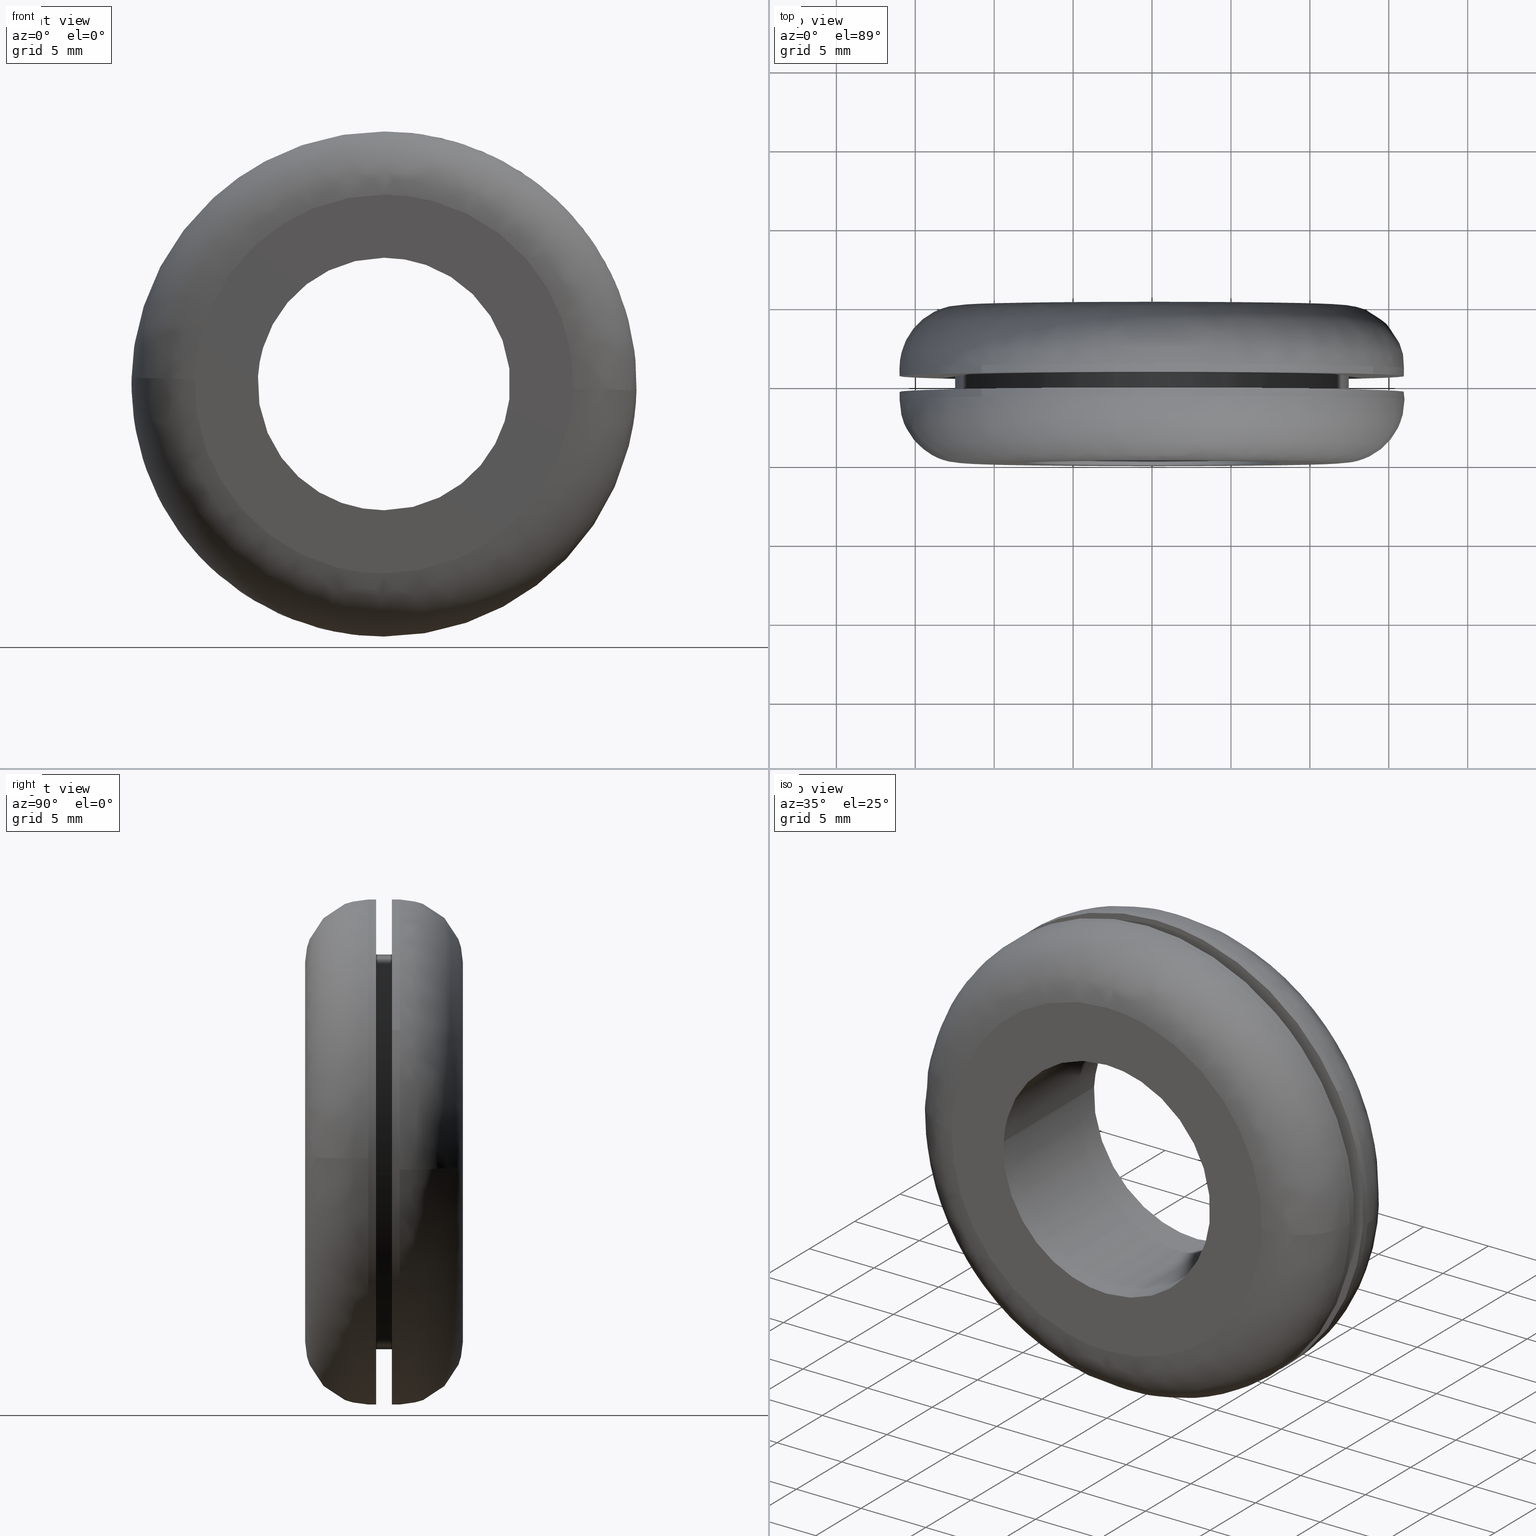
[diagram: canonical four-view strip — front | top / right | iso, engineering-drawing reading convention]
A machine part, canonical four-view strip (front | top / right | iso — engineering-drawing reading convention). The complete STEP part file that produces these views, byte-faithful:
ISO-10303-21;
HEADER;
/****************************************************************
 * Generated by software with PDE/Lib inside                    *
 * PDElib Version 4.4.1-0003, patched  Thursday August 19 11:58 *
 * International Technegroup Inc. (www.iti-oh.com)              *
 ****************************************************************/
FILE_DESCRIPTION((''),'2;1');
FILE_NAME('','2005-12-14T13:38:35',(''),(''),'','CADfix','');
FILE_SCHEMA(('AUTOMOTIVE_DESIGN'));
ENDSEC;
DATA;
#5=APPLICATION_CONTEXT('automotive design');
#6=APPLICATION_PROTOCOL_DEFINITION('Draft International Standard','automotive_design',1998,#5);
#7=PRODUCT_CONTEXT('None',#5,'mechanical');
#8=PRODUCT('grommet','','None',(#7));
#9=PRODUCT_RELATED_PRODUCT_CATEGORY('part','description',(#8));
#10=PRODUCT_DEFINITION_FORMATION('None','None',#8);
#11=PRODUCT_DEFINITION_CONTEXT('part definition',#5,'design');
#12=PRODUCT_DEFINITION('None','None',#10,#11);
#18=(NAMED_UNIT(*)PLANE_ANGLE_UNIT()SI_UNIT($,.RADIAN.));
#19=DIMENSIONAL_EXPONENTS(0.0,0.0,0.0,0.0,0.0,0.0,0.0);
#20=PLANE_ANGLE_MEASURE_WITH_UNIT(PLANE_ANGLE_MEASURE(0.017453292500000),#18);
#24=(CONVERSION_BASED_UNIT('DEGREE',#20)NAMED_UNIT(#19)PLANE_ANGLE_UNIT());
#28=(NAMED_UNIT(*)SI_UNIT($,.STERADIAN.)SOLID_ANGLE_UNIT());
#32=(LENGTH_UNIT()NAMED_UNIT(*)SI_UNIT(.MILLI.,.METRE.));
#34=UNCERTAINTY_MEASURE_WITH_UNIT(LENGTH_MEASURE(0.001000000000000),#32,'DISTANCE_ACCURACY_VALUE','');
#36=(GEOMETRIC_REPRESENTATION_CONTEXT(3)GLOBAL_UNCERTAINTY_ASSIGNED_CONTEXT((#34))GLOBAL_UNIT_ASSIGNED_CONTEXT((#24,#28,#32))REPRESENTATION_CONTEXT('None','None'));
#37=AXIS2_PLACEMENT_3D('',#38,#39,#40);
#38=CARTESIAN_POINT('',(0.0,0.0,0.0));
#39=DIRECTION('',(0.0,0.0,1.0));
#40=DIRECTION('',(1.0,0.0,0.0));
#41=ADVANCED_BREP_SHAPE_REPRESENTATION('',(#37,#1227),#36);
#42=PRODUCT_DEFINITION_SHAPE('','',#12);
#43=SHAPE_DEFINITION_REPRESENTATION(#42,#41);
#44=CARTESIAN_POINT('',(-10.469434512043270,4.512500000000721,-12.099212412303421));
#45=CARTESIAN_POINT('',(0.304813727655260,4.512500000000721,-21.422156957629131));
#46=CARTESIAN_POINT('',(10.809443321850560,4.512500000000721,-11.796437388961980));
#47=CARTESIAN_POINT('',(22.605880710812539,4.512500000000721,-0.986994067111418));
#48=CARTESIAN_POINT('',(11.796437388961980,4.512500000000721,10.809443321850560));
#49=CARTESIAN_POINT('',(0.986994067111418,4.512500000000721,22.605880710812539));
#50=CARTESIAN_POINT('',(-10.809443321850560,4.512500000000721,11.796437388961980));
#51=CARTESIAN_POINT('',(-10.469434512043270,3.987187499970438,-12.099212412303421));
#52=CARTESIAN_POINT('',(0.304813727655260,3.987187499970438,-21.422156957629131));
#53=CARTESIAN_POINT('',(10.809443321850560,3.987187499970438,-11.796437388961980));
#54=CARTESIAN_POINT('',(22.605880710812539,3.987187499970438,-0.986994067111418));
#55=CARTESIAN_POINT('',(11.796437388961980,3.987187499970438,10.809443321850560));
#56=CARTESIAN_POINT('',(0.986994067111418,3.987187499970438,22.605880710812539));
#57=CARTESIAN_POINT('',(-10.809443321850560,3.987187499970438,11.796437388961980));
#65=(BOUNDED_SURFACE()B_SPLINE_SURFACE(2,1,((#44,#51),(#45,#52),(#46,#53),(#47,#54),(#48,#55),(#49,#56),(#50,#57)),.UNSPECIFIED.,.F.,.F.,.U.)B_SPLINE_SURFACE_WITH_KNOTS((3,2,2,3),(2,2),(0.0,24.388894552527830,50.898562544405912,77.408230536283980),(0.0,1.0),.UNSPECIFIED.)GEOMETRIC_REPRESENTATION_ITEM()RATIONAL_B_SPLINE_SURFACE(((0.956886118190660,0.956886118190660),(0.730538238691624,0.730538238691624),(1.0,1.0),(0.707106781186548,0.707106781186548),(1.0,1.0),(0.707106781186548,0.707106781186548),(1.0,1.0)))REPRESENTATION_ITEM('')SURFACE());
#66=CARTESIAN_POINT('',(-10.469433983530910,4.500000000000068,-12.099212869624520));
#67=VERTEX_POINT('',#66);
#68=CARTESIAN_POINT('',(0.0,4.500000000000000,-16.0));
#69=VERTEX_POINT('',#68);
#70=CARTESIAN_POINT('',(-10.469433983530910,4.500000000000068,-12.099212869624516));
#71=CARTESIAN_POINT('',(-5.961410140961593,4.500000000000000,-16.000000000000004));
#72=CARTESIAN_POINT('',(0.0,4.500000000000000,-16.0));
#80=(BOUNDED_CURVE()B_SPLINE_CURVE(2,(#70,#71,#72),.UNSPECIFIED.,.F.,.U.)B_SPLINE_CURVE_WITH_KNOTS((3,3),(0.885882133147832,1.0),.UNSPECIFIED.)CURVE()GEOMETRIC_REPRESENTATION_ITEM()RATIONAL_B_SPLINE_CURVE((0.854663299575205,0.866302602614174,1.0))REPRESENTATION_ITEM(''));
#81=EDGE_CURVE('',#67,#69,#80,.T.);
#82=ORIENTED_EDGE('',*,*,#81,.T.);
#83=CARTESIAN_POINT('',(0.0,4.500000000000000,16.0));
#84=VERTEX_POINT('',#83);
#85=CARTESIAN_POINT('',(0.0,4.500000000000000,-16.0));
#86=CARTESIAN_POINT('',(15.999999999999998,4.500000000000000,-15.999999999999998));
#87=CARTESIAN_POINT('',(16.0,4.500000000000000,-3.061516E-016));
#88=CARTESIAN_POINT('',(15.999999999999998,4.500000000000000,15.999999999999998));
#89=CARTESIAN_POINT('',(0.0,4.500000000000000,16.0));
#97=(BOUNDED_CURVE()B_SPLINE_CURVE(2,(#85,#86,#87,#88,#89),.UNSPECIFIED.,.F.,.U.)B_SPLINE_CURVE_WITH_KNOTS((3,2,3),(0.0,0.250000000000000,0.500000000000000),.UNSPECIFIED.)CURVE()GEOMETRIC_REPRESENTATION_ITEM()RATIONAL_B_SPLINE_CURVE((1.0,0.707106781186548,1.0,0.707106781186548,1.0))REPRESENTATION_ITEM(''));
#98=EDGE_CURVE('',#69,#84,#97,.T.);
#99=ORIENTED_EDGE('',*,*,#98,.T.);
#100=CARTESIAN_POINT('',(-10.809442688117811,4.500000000000000,11.796437969671000));
#101=VERTEX_POINT('',#100);
#102=CARTESIAN_POINT('',(0.0,4.500000000000000,16.0));
#103=CARTESIAN_POINT('',(-6.222058720101623,4.500000000000000,16.0));
#104=CARTESIAN_POINT('',(-10.809442688117809,4.500000000000001,11.796437969671002));
#112=(BOUNDED_CURVE()B_SPLINE_CURVE(2,(#102,#103,#104),.UNSPECIFIED.,.F.,.U.)B_SPLINE_CURVE_WITH_KNOTS((3,3),(0.500000000000000,0.618415192864190),.UNSPECIFIED.)CURVE()GEOMETRIC_REPRESENTATION_ITEM()RATIONAL_B_SPLINE_CURVE((1.0,0.861267972022367,0.853959782840026))REPRESENTATION_ITEM(''));
#113=EDGE_CURVE('',#84,#101,#112,.T.);
#114=ORIENTED_EDGE('',*,*,#113,.T.);
#115=CARTESIAN_POINT('',(-10.809442659241270,3.999999999992319,11.796437996130919));
#116=VERTEX_POINT('',#115);
#117=CARTESIAN_POINT('',(-10.809442688117811,4.500000000000000,11.796437969671000));
#118=CARTESIAN_POINT('',(-10.809442659241270,3.999999999992319,11.796437996130919));
#119=QUASI_UNIFORM_CURVE('',1,(#117,#118),.UNSPECIFIED.,.F.,.U.);
#120=EDGE_CURVE('',#101,#116,#119,.T.);
#121=ORIENTED_EDGE('',*,*,#120,.T.);
#122=CARTESIAN_POINT('',(0.0,4.0,16.0));
#123=VERTEX_POINT('',#122);
#124=CARTESIAN_POINT('',(0.0,4.0,16.0));
#125=CARTESIAN_POINT('',(-6.222058675012078,4.000000000000000,15.999999999999998));
#126=CARTESIAN_POINT('',(-10.809442659241274,3.999999999992319,11.796437996130914));
#134=(BOUNDED_CURVE()B_SPLINE_CURVE(2,(#124,#125,#126),.UNSPECIFIED.,.F.,.U.)B_SPLINE_CURVE_WITH_KNOTS((3,3),(0.500000000000000,0.618415192125116),.UNSPECIFIED.)CURVE()GEOMETRIC_REPRESENTATION_ITEM()RATIONAL_B_SPLINE_CURVE((1.0,0.861267972888245,0.853959782931253))REPRESENTATION_ITEM(''));
#135=EDGE_CURVE('',#123,#116,#134,.T.);
#136=ORIENTED_EDGE('',*,*,#135,.F.);
#137=CARTESIAN_POINT('',(15.994947028532691,3.999999999971177,-0.402081527097603));
#138=VERTEX_POINT('',#137);
#139=CARTESIAN_POINT('',(15.994947028532689,3.999999999971177,-0.402081527097603));
#140=CARTESIAN_POINT('',(15.999999999999998,4.000000000000001,-0.201072513978279));
#141=CARTESIAN_POINT('',(16.0,4.0,-3.061516E-016));
#142=CARTESIAN_POINT('',(15.999999999999998,4.000000000000000,15.999999999999998));
#143=CARTESIAN_POINT('',(0.0,4.0,16.0));
#151=(BOUNDED_CURVE()B_SPLINE_CURVE(2,(#139,#140,#141,#142,#143),.UNSPECIFIED.,.F.,.U.)B_SPLINE_CURVE_WITH_KNOTS((3,2,3),(0.245579891769716,0.250000000000000,0.500000000000000),.UNSPECIFIED.)CURVE()GEOMETRIC_REPRESENTATION_ITEM()RATIONAL_B_SPLINE_CURVE((0.989826157681368,0.994821521091713,1.0,0.707106781186548,1.0))REPRESENTATION_ITEM(''));
#152=EDGE_CURVE('',#138,#123,#151,.T.);
#153=ORIENTED_EDGE('',*,*,#152,.F.);
#154=CARTESIAN_POINT('',(0.0,4.0,-16.0));
#155=VERTEX_POINT('',#154);
#156=CARTESIAN_POINT('',(0.0,4.0,-16.0));
#157=CARTESIAN_POINT('',(15.602846018882175,4.0,-16.0));
#158=CARTESIAN_POINT('',(15.994947028532689,3.999999999971177,-0.402081527097603));
#166=(BOUNDED_CURVE()B_SPLINE_CURVE(2,(#156,#157,#158),.UNSPECIFIED.,.F.,.U.)B_SPLINE_CURVE_WITH_KNOTS((3,3),(0.0,0.245579891769716),.UNSPECIFIED.)CURVE()GEOMETRIC_REPRESENTATION_ITEM()RATIONAL_B_SPLINE_CURVE((1.0,0.712285260094835,0.989826157681368))REPRESENTATION_ITEM(''));
#167=EDGE_CURVE('',#155,#138,#166,.T.);
#168=ORIENTED_EDGE('',*,*,#167,.F.);
#169=CARTESIAN_POINT('',(-10.469433989899141,4.0,-12.099212864114101));
#170=VERTEX_POINT('',#169);
#171=CARTESIAN_POINT('',(-10.469433989899136,4.000000000000000,-12.099212864114101));
#172=CARTESIAN_POINT('',(-5.961410150552005,4.000000000000001,-16.0));
#173=CARTESIAN_POINT('',(0.0,4.0,-16.0));
#181=(BOUNDED_CURVE()B_SPLINE_CURVE(2,(#171,#172,#173),.UNSPECIFIED.,.F.,.U.)B_SPLINE_CURVE_WITH_KNOTS((3,3),(0.885882132988790,1.0),.UNSPECIFIED.)CURVE()GEOMETRIC_REPRESENTATION_ITEM()RATIONAL_B_SPLINE_CURVE((0.854663299542762,0.866302602427844,1.0))REPRESENTATION_ITEM(''));
#182=EDGE_CURVE('',#170,#155,#181,.T.);
#183=ORIENTED_EDGE('',*,*,#182,.F.);
#184=CARTESIAN_POINT('',(-10.469433983530910,4.500000000000068,-12.099212869624520));
#185=CARTESIAN_POINT('',(-10.469433989899141,4.0,-12.099212864114101));
#186=QUASI_UNIFORM_CURVE('',1,(#184,#185),.UNSPECIFIED.,.F.,.U.);
#187=EDGE_CURVE('',#67,#170,#186,.T.);
#188=ORIENTED_EDGE('',*,*,#187,.F.);
#189=EDGE_LOOP('',(#82,#99,#114,#121,#136,#153,#168,#183,#188));
#190=FACE_OUTER_BOUND('',#189,.T.);
#191=ADVANCED_FACE('',(#190),#65,.T.);
#192=CARTESIAN_POINT('',(-10.809443321850560,4.512500000000721,11.796437388961980));
#193=CARTESIAN_POINT('',(-22.605880710812539,4.512500000000721,0.986994067111418));
#194=CARTESIAN_POINT('',(-11.796437388961980,4.512500000000721,-10.809443321850560));
#195=CARTESIAN_POINT('',(-11.170291422457273,4.512500000000721,-11.492761738007385));
#196=CARTESIAN_POINT('',(-10.469434512043270,4.512500000000721,-12.099212412303421));
#197=CARTESIAN_POINT('',(-10.809443321850560,3.987187499970438,11.796437388961980));
#198=CARTESIAN_POINT('',(-22.605880710812539,3.987187499970438,0.986994067111418));
#199=CARTESIAN_POINT('',(-11.796437388961980,3.987187499970438,-10.809443321850560));
#200=CARTESIAN_POINT('',(-11.170291422457273,3.987187499970438,-11.492761738007385));
#201=CARTESIAN_POINT('',(-10.469434512043270,3.987187499970438,-12.099212412303421));
#209=(BOUNDED_SURFACE()B_SPLINE_SURFACE(2,1,((#192,#197),(#193,#198),(#194,#199),(#195,#200),(#196,#201)),.UNSPECIFIED.,.F.,.F.,.U.)B_SPLINE_SURFACE_WITH_KNOTS((3,2,3),(2,2),(0.0,26.509667991878079,28.630441431228331),(0.0,1.0),.UNSPECIFIED.)GEOMETRIC_REPRESENTATION_ITEM()RATIONAL_B_SPLINE_SURFACE(((1.0,1.0),(0.707106781186548,0.707106781186548),(1.0,1.0),(0.976568542494924,0.976568542494924),(0.956886118190660,0.956886118190660)))REPRESENTATION_ITEM('')SURFACE());
#210=CARTESIAN_POINT('',(-10.809442688117809,4.500000000000001,11.796437969671002));
#211=CARTESIAN_POINT('',(-16.0,4.500000000000002,7.040169520245899));
#212=CARTESIAN_POINT('',(-16.0,4.500000000000000,-3.061516E-016));
#213=CARTESIAN_POINT('',(-16.000000000000004,4.500000000000001,-7.313621334589896));
#214=CARTESIAN_POINT('',(-10.469433983530910,4.500000000000068,-12.099212869624514));
#222=(BOUNDED_CURVE()B_SPLINE_CURVE(2,(#210,#211,#212,#213,#214),.UNSPECIFIED.,.F.,.U.)B_SPLINE_CURVE_WITH_KNOTS((3,2,3),(0.618415192864190,0.750000000000000,0.885882133147832),.UNSPECIFIED.)CURVE()GEOMETRIC_REPRESENTATION_ITEM()RATIONAL_B_SPLINE_CURVE((0.853959782840026,0.845838809164181,1.0,0.840804178572373,0.854663299575205))REPRESENTATION_ITEM(''));
#223=EDGE_CURVE('',#101,#67,#222,.T.);
#224=ORIENTED_EDGE('',*,*,#223,.T.);
#225=ORIENTED_EDGE('',*,*,#187,.T.);
#226=CARTESIAN_POINT('',(-15.994947028532691,3.999999999971177,0.402081527097606));
#227=VERTEX_POINT('',#226);
#228=CARTESIAN_POINT('',(-15.994947028532691,3.999999999971177,0.402081527097606));
#229=CARTESIAN_POINT('',(-15.999999999999998,4.000000000000001,0.201072513978281));
#230=CARTESIAN_POINT('',(-16.0,4.0,-3.061516E-016));
#231=CARTESIAN_POINT('',(-15.999999999999998,4.000000000000001,-7.313621324408961));
#232=CARTESIAN_POINT('',(-10.469433989899137,4.000000000000000,-12.099212864114097));
#240=(BOUNDED_CURVE()B_SPLINE_CURVE(2,(#228,#229,#230,#231,#232),.UNSPECIFIED.,.F.,.U.)B_SPLINE_CURVE_WITH_KNOTS((3,2,3),(0.745579891769716,0.750000000000000,0.885882132988790),.UNSPECIFIED.)CURVE()GEOMETRIC_REPRESENTATION_ITEM()RATIONAL_B_SPLINE_CURVE((0.989826157681368,0.994821521091713,1.0,0.840804178758703,0.854663299542762))REPRESENTATION_ITEM(''));
#241=EDGE_CURVE('',#227,#170,#240,.T.);
#242=ORIENTED_EDGE('',*,*,#241,.F.);
#243=CARTESIAN_POINT('',(-10.809442659241274,3.999999999992319,11.796437996130917));
#244=CARTESIAN_POINT('',(-15.824025001948126,3.999999999983741,7.201420907187118));
#245=CARTESIAN_POINT('',(-15.994947028532691,3.999999999971177,0.402081527097606));
#253=(BOUNDED_CURVE()B_SPLINE_CURVE(2,(#243,#244,#245),.UNSPECIFIED.,.F.,.U.)B_SPLINE_CURVE_WITH_KNOTS((3,3),(0.618415192125118,0.745579891769716),.UNSPECIFIED.)CURVE()GEOMETRIC_REPRESENTATION_ITEM()RATIONAL_B_SPLINE_CURVE((0.853959782931253,0.846111602607865,0.989826157681369))REPRESENTATION_ITEM(''));
#254=EDGE_CURVE('',#116,#227,#253,.T.);
#255=ORIENTED_EDGE('',*,*,#254,.F.);
#256=ORIENTED_EDGE('',*,*,#120,.F.);
#257=EDGE_LOOP('',(#224,#225,#242,#255,#256));
#258=FACE_OUTER_BOUND('',#257,.T.);
#259=ADVANCED_FACE('',(#258),#209,.T.);
#260=CARTESIAN_POINT('',(12.412619079545834,5.525000000000002,-1.475427933209482));
#261=CARTESIAN_POINT('',(12.454845193107571,5.525000000000002,-1.120184107974722));
#262=CARTESIAN_POINT('',(12.476684980273340,5.525000000000001,-0.763106744185713));
#263=CARTESIAN_POINT('',(13.239791724459048,5.525000000000000,11.713578236087622));
#264=CARTESIAN_POINT('',(0.763106744185712,5.525000000000001,12.476684980273340));
#265=CARTESIAN_POINT('',(-11.713578236087622,5.525000000000000,13.239791724459048));
#266=CARTESIAN_POINT('',(-12.476684980273340,5.525000000000001,0.763106744185712));
#267=CARTESIAN_POINT('',(12.412619079545834,4.474374999999999,-1.475427933209482));
#268=CARTESIAN_POINT('',(12.454845193107571,4.474374999999999,-1.120184107974722));
#269=CARTESIAN_POINT('',(12.476684980273340,4.474374999999999,-0.763106744185713));
#270=CARTESIAN_POINT('',(13.239791724459048,4.474374999999999,11.713578236087622));
#271=CARTESIAN_POINT('',(0.763106744185712,4.474374999999999,12.476684980273340));
#272=CARTESIAN_POINT('',(-11.713578236087622,4.474374999999999,13.239791724459048));
#273=CARTESIAN_POINT('',(-12.476684980273340,4.474374999999999,0.763106744185712));
#281=(BOUNDED_SURFACE()B_SPLINE_SURFACE(2,1,((#260,#267),(#261,#268),(#262,#269),(#263,#270),(#264,#271),(#265,#272),(#266,#273)),.UNSPECIFIED.,.F.,.F.,.U.)B_SPLINE_SURFACE_WITH_KNOTS((3,2,2,3),(2,2),(0.0,0.828427124746191,21.539105243400940,42.249783362055702),(0.0,1.0),.UNSPECIFIED.)GEOMETRIC_REPRESENTATION_ITEM()RATIONAL_B_SPLINE_SURFACE(((0.977505800795127,0.977505800795127),(0.988284271247462,0.988284271247462),(1.0,1.0),(0.707106781186548,0.707106781186548),(1.0,1.0),(0.707106781186548,0.707106781186548),(1.0,1.0)))REPRESENTATION_ITEM('')SURFACE());
#282=CARTESIAN_POINT('',(12.412620618392291,4.500000000000158,-1.475414986941843));
#283=VERTEX_POINT('',#282);
#284=CARTESIAN_POINT('',(0.0,4.500000000000000,12.500000000000000));
#285=VERTEX_POINT('',#284);
#286=CARTESIAN_POINT('',(12.412620618392285,4.500000000000158,-1.475414986941843));
#287=CARTESIAN_POINT('',(12.500000000000002,4.500000000000000,-0.740294954082926));
#288=CARTESIAN_POINT('',(12.500000000000000,4.500000000000000,-3.061516E-016));
#289=CARTESIAN_POINT('',(12.499999999999998,4.500000000000000,12.499999999999998));
#290=CARTESIAN_POINT('',(0.0,4.500000000000000,12.500000000000000));
#298=(BOUNDED_CURVE()B_SPLINE_CURVE(2,(#286,#287,#288,#289,#290),.UNSPECIFIED.,.F.,.U.)B_SPLINE_CURVE_WITH_KNOTS((3,2,3),(0.229562649784764,0.250000000000000,0.500000000000000),.UNSPECIFIED.)CURVE()GEOMETRIC_REPRESENTATION_ITEM()RATIONAL_B_SPLINE_CURVE((0.956027099682864,0.976056154845766,1.0,0.707106781186547,1.0))REPRESENTATION_ITEM(''));
#299=EDGE_CURVE('',#283,#285,#298,.T.);
#300=ORIENTED_EDGE('',*,*,#299,.F.);
#301=CARTESIAN_POINT('',(12.412620599407919,5.500000000000000,-1.475415146658134));
#302=VERTEX_POINT('',#301);
#303=CARTESIAN_POINT('',(12.412620599407919,5.500000000000000,-1.475415146658134));
#304=CARTESIAN_POINT('',(12.412620618392291,4.500000000000158,-1.475414986941843));
#305=QUASI_UNIFORM_CURVE('',1,(#303,#304),.UNSPECIFIED.,.F.,.U.);
#306=EDGE_CURVE('',#302,#283,#305,.T.);
#307=ORIENTED_EDGE('',*,*,#306,.F.);
#308=CARTESIAN_POINT('',(0.0,5.500000000000000,12.500000000000000));
#309=VERTEX_POINT('',#308);
#310=CARTESIAN_POINT('',(12.412620599407926,5.500000000000000,-1.475415146658134));
#311=CARTESIAN_POINT('',(12.500000000000002,5.500000000000000,-0.740295034785297));
#312=CARTESIAN_POINT('',(12.500000000000000,5.500000000000000,-3.061516E-016));
#313=CARTESIAN_POINT('',(12.499999999999998,5.500000000000000,12.499999999999998));
#314=CARTESIAN_POINT('',(0.0,5.500000000000000,12.500000000000000));
#322=(BOUNDED_CURVE()B_SPLINE_CURVE(2,(#310,#311,#312,#313,#314),.UNSPECIFIED.,.F.,.U.)B_SPLINE_CURVE_WITH_KNOTS((3,2,3),(0.229562647610156,0.250000000000000,0.500000000000000),.UNSPECIFIED.)CURVE()GEOMETRIC_REPRESENTATION_ITEM()RATIONAL_B_SPLINE_CURVE((0.956027095420537,0.976056152298055,1.0,0.707106781186547,1.0))REPRESENTATION_ITEM(''));
#323=EDGE_CURVE('',#302,#309,#322,.T.);
#324=ORIENTED_EDGE('',*,*,#323,.T.);
#325=CARTESIAN_POINT('',(-12.476685302680121,5.500000000000000,0.763101472844820));
#326=VERTEX_POINT('',#325);
#327=CARTESIAN_POINT('',(0.0,5.500000000000000,12.500000000000000));
#328=CARTESIAN_POINT('',(-11.758830813654541,5.500000000000000,12.499999999999998));
#329=CARTESIAN_POINT('',(-12.476685302680121,5.500000000000000,0.763101472844820));
#337=(BOUNDED_CURVE()B_SPLINE_CURVE(2,(#327,#328,#329),.UNSPECIFIED.,.F.,.U.)B_SPLINE_CURVE_WITH_KNOTS((3,3),(0.500000000000000,0.739333035142182),.UNSPECIFIED.)CURVE()GEOMETRIC_REPRESENTATION_ITEM()RATIONAL_B_SPLINE_CURVE((1.0,0.719603907875253,0.976072197912286))REPRESENTATION_ITEM(''));
#338=EDGE_CURVE('',#309,#326,#337,.T.);
#339=ORIENTED_EDGE('',*,*,#338,.T.);
#340=CARTESIAN_POINT('',(-12.476685306703670,4.500000000000192,0.763101407059438));
#341=VERTEX_POINT('',#340);
#342=CARTESIAN_POINT('',(-12.476685302680121,5.500000000000000,0.763101472844820));
#343=CARTESIAN_POINT('',(-12.476685306703670,4.500000000000192,0.763101407059438));
#344=QUASI_UNIFORM_CURVE('',1,(#342,#343),.UNSPECIFIED.,.F.,.U.);
#345=EDGE_CURVE('',#326,#341,#344,.T.);
#346=ORIENTED_EDGE('',*,*,#345,.T.);
#347=CARTESIAN_POINT('',(0.0,4.500000000000000,12.500000000000000));
#348=CARTESIAN_POINT('',(-11.758830875770775,4.500000000000000,12.499999999999998));
#349=CARTESIAN_POINT('',(-12.476685306703670,4.500000000000192,0.763101407059438));
#357=(BOUNDED_CURVE()B_SPLINE_CURVE(2,(#347,#348,#349),.UNSPECIFIED.,.F.,.U.)B_SPLINE_CURVE_WITH_KNOTS((3,3),(0.500000000000000,0.739333036051963),.UNSPECIFIED.)CURVE()GEOMETRIC_REPRESENTATION_ITEM()RATIONAL_B_SPLINE_CURVE((1.0,0.719603906809378,0.976072199862122))REPRESENTATION_ITEM(''));
#358=EDGE_CURVE('',#285,#341,#357,.T.);
#359=ORIENTED_EDGE('',*,*,#358,.F.);
#360=EDGE_LOOP('',(#300,#307,#324,#339,#346,#359));
#361=FACE_OUTER_BOUND('',#360,.T.);
#362=ADVANCED_FACE('',(#361),#281,.T.);
#363=CARTESIAN_POINT('',(-12.476684980273340,5.525000000000001,0.763106744185712));
#364=CARTESIAN_POINT('',(-13.239791724459048,5.525000000000000,-11.713578236087622));
#365=CARTESIAN_POINT('',(-0.763106744185712,5.525000000000001,-12.476684980273340));
#366=CARTESIAN_POINT('',(11.019293635493762,5.525000000000000,-13.197327459156595));
#367=CARTESIAN_POINT('',(12.412619079545834,5.525000000000002,-1.475427933209482));
#368=CARTESIAN_POINT('',(-12.476684980273340,4.474374999999999,0.763106744185712));
#369=CARTESIAN_POINT('',(-13.239791724459048,4.474374999999999,-11.713578236087622));
#370=CARTESIAN_POINT('',(-0.763106744185712,4.474374999999999,-12.476684980273340));
#371=CARTESIAN_POINT('',(11.019293635493762,4.474374999999999,-13.197327459156595));
#372=CARTESIAN_POINT('',(12.412619079545834,4.474374999999999,-1.475427933209482));
#380=(BOUNDED_SURFACE()B_SPLINE_SURFACE(2,1,((#363,#368),(#364,#369),(#365,#370),(#366,#371),(#367,#372)),.UNSPECIFIED.,.F.,.F.,.U.)B_SPLINE_SURFACE_WITH_KNOTS((3,2,3),(2,2),(0.0,20.710678118654752,40.592929112563311),(0.0,1.0),.UNSPECIFIED.)GEOMETRIC_REPRESENTATION_ITEM()RATIONAL_B_SPLINE_SURFACE(((1.0,1.0),(0.707106781186548,0.707106781186548),(1.0,1.0),(0.718822509939086,0.718822509939086),(0.977505800795127,0.977505800795127)))REPRESENTATION_ITEM('')SURFACE());
#381=CARTESIAN_POINT('',(0.0,4.500000000000000,-12.500000000000000));
#382=VERTEX_POINT('',#381);
#383=CARTESIAN_POINT('',(0.0,4.500000000000000,-12.500000000000000));
#384=CARTESIAN_POINT('',(11.102193235403265,4.500000000000000,-12.500000000000000));
#385=CARTESIAN_POINT('',(12.412620618392285,4.500000000000158,-1.475414986941843));
#393=(BOUNDED_CURVE()B_SPLINE_CURVE(2,(#383,#384,#385),.UNSPECIFIED.,.F.,.U.)B_SPLINE_CURVE_WITH_KNOTS((3,3),(0.0,0.229562649784764),.UNSPECIFIED.)CURVE()GEOMETRIC_REPRESENTATION_ITEM()RATIONAL_B_SPLINE_CURVE((1.0,0.731050626340781,0.956027099682864))REPRESENTATION_ITEM(''));
#394=EDGE_CURVE('',#382,#283,#393,.T.);
#395=ORIENTED_EDGE('',*,*,#394,.F.);
#396=CARTESIAN_POINT('',(-12.476685306703670,4.500000000000192,0.763101407059438));
#397=CARTESIAN_POINT('',(-12.499999999999996,4.500000000000001,0.381906865186920));
#398=CARTESIAN_POINT('',(-12.500000000000000,4.500000000000000,-3.061516E-016));
#399=CARTESIAN_POINT('',(-12.499999999999998,4.500000000000000,-12.499999999999998));
#400=CARTESIAN_POINT('',(0.0,4.500000000000000,-12.500000000000000));
#408=(BOUNDED_CURVE()B_SPLINE_CURVE(2,(#396,#397,#398,#399,#400),.UNSPECIFIED.,.F.,.U.)B_SPLINE_CURVE_WITH_KNOTS((3,2,3),(0.739333036051963,0.750000000000000,1.0),.UNSPECIFIED.)CURVE()GEOMETRIC_REPRESENTATION_ITEM()RATIONAL_B_SPLINE_CURVE((0.976072199862122,0.987502874377170,1.0,0.707106781186547,1.0))REPRESENTATION_ITEM(''));
#409=EDGE_CURVE('',#341,#382,#408,.T.);
#410=ORIENTED_EDGE('',*,*,#409,.F.);
#411=ORIENTED_EDGE('',*,*,#345,.F.);
#412=CARTESIAN_POINT('',(0.0,5.500000000000000,-12.500000000000000));
#413=VERTEX_POINT('',#412);
#414=CARTESIAN_POINT('',(-12.476685302680121,5.500000000000000,0.763101472844820));
#415=CARTESIAN_POINT('',(-12.499999999999998,5.500000000000000,0.381906898171838));
#416=CARTESIAN_POINT('',(-12.500000000000000,5.500000000000000,-3.061516E-016));
#417=CARTESIAN_POINT('',(-12.499999999999998,5.500000000000000,-12.499999999999998));
#418=CARTESIAN_POINT('',(0.0,5.500000000000000,-12.500000000000000));
#426=(BOUNDED_CURVE()B_SPLINE_CURVE(2,(#414,#415,#416,#417,#418),.UNSPECIFIED.,.F.,.U.)B_SPLINE_CURVE_WITH_KNOTS((3,2,3),(0.739333035142182,0.750000000000000,1.0),.UNSPECIFIED.)CURVE()GEOMETRIC_REPRESENTATION_ITEM()RATIONAL_B_SPLINE_CURVE((0.976072197912286,0.987502873311294,1.0,0.707106781186547,1.0))REPRESENTATION_ITEM(''));
#427=EDGE_CURVE('',#326,#413,#426,.T.);
#428=ORIENTED_EDGE('',*,*,#427,.T.);
#429=CARTESIAN_POINT('',(0.0,5.500000000000000,-12.500000000000000));
#430=CARTESIAN_POINT('',(11.102193091542953,5.500000000000000,-12.500000000000000));
#431=CARTESIAN_POINT('',(12.412620599407926,5.500000000000000,-1.475415146658134));
#439=(BOUNDED_CURVE()B_SPLINE_CURVE(2,(#429,#430,#431),.UNSPECIFIED.,.F.,.U.)B_SPLINE_CURVE_WITH_KNOTS((3,3),(0.0,0.229562647610156),.UNSPECIFIED.)CURVE()GEOMETRIC_REPRESENTATION_ITEM()RATIONAL_B_SPLINE_CURVE((1.0,0.731050628888492,0.956027095420537))REPRESENTATION_ITEM(''));
#440=EDGE_CURVE('',#413,#302,#439,.T.);
#441=ORIENTED_EDGE('',*,*,#440,.T.);
#442=ORIENTED_EDGE('',*,*,#306,.T.);
#443=EDGE_LOOP('',(#395,#410,#411,#428,#441,#442));
#444=FACE_OUTER_BOUND('',#443,.T.);
#445=ADVANCED_FACE('',(#444),#380,.T.);
#446=CARTESIAN_POINT('',(13.999142839090082,6.012500000038799,7.747515716070069));
#447=CARTESIAN_POINT('',(13.079515056441656,6.012500000038799,9.409209755797862));
#448=CARTESIAN_POINT('',(11.796437388961980,6.012500000038799,10.809443321850560));
#449=CARTESIAN_POINT('',(0.986994067111418,6.012500000038799,22.605880710812539));
#450=CARTESIAN_POINT('',(-10.809443321850560,6.012500000038799,11.796437388961980));
#451=CARTESIAN_POINT('',(13.999142839090082,5.487187499999030,7.747515716070069));
#452=CARTESIAN_POINT('',(13.079515056441656,5.487187499999031,9.409209755797862));
#453=CARTESIAN_POINT('',(11.796437388961980,5.487187499999029,10.809443321850560));
#454=CARTESIAN_POINT('',(0.986994067111418,5.487187499999030,22.605880710812539));
#455=CARTESIAN_POINT('',(-10.809443321850560,5.487187499999029,11.796437388961980));
#463=(BOUNDED_SURFACE()B_SPLINE_SURFACE(2,1,((#446,#451),(#447,#452),(#448,#453),(#449,#454),(#450,#455)),.UNSPECIFIED.,.F.,.F.,.U.)B_SPLINE_SURFACE_WITH_KNOTS((3,2,3),(2,2),(0.0,4.241546878700499,30.751214870578579),(0.0,1.0),.UNSPECIFIED.)GEOMETRIC_REPRESENTATION_ITEM()RATIONAL_B_SPLINE_SURFACE(((0.921270302782944,0.921270302782944),(0.953137084989848,0.953137084989848),(1.0,1.0),(0.707106781186548,0.707106781186548),(1.0,1.0)))REPRESENTATION_ITEM('')SURFACE());
#464=CARTESIAN_POINT('',(13.999144271823431,6.000000000000282,7.747513127234091));
#465=VERTEX_POINT('',#464);
#466=CARTESIAN_POINT('',(0.0,6.0,16.0));
#467=VERTEX_POINT('',#466);
#468=CARTESIAN_POINT('',(13.999144271823427,6.000000000000281,7.747513127234091));
#469=CARTESIAN_POINT('',(9.431990084566193,6.000000000000001,16.000000000000007));
#470=CARTESIAN_POINT('',(0.0,6.0,16.0));
#478=(BOUNDED_CURVE()B_SPLINE_CURVE(2,(#468,#469,#470),.UNSPECIFIED.,.F.,.U.)B_SPLINE_CURVE_WITH_KNOTS((3,3),(0.332484260513294,0.500000000000000),.UNSPECIFIED.)CURVE()GEOMETRIC_REPRESENTATION_ITEM()RATIONAL_B_SPLINE_CURVE((0.870495160132448,0.803743103439292,1.0))REPRESENTATION_ITEM(''));
#479=EDGE_CURVE('',#465,#467,#478,.T.);
#480=ORIENTED_EDGE('',*,*,#479,.T.);
#481=CARTESIAN_POINT('',(-10.809442670793439,6.000000000009967,11.796437985544690));
#482=VERTEX_POINT('',#481);
#483=CARTESIAN_POINT('',(0.0,6.0,16.0));
#484=CARTESIAN_POINT('',(-6.222058693050388,6.0,16.000000000000007));
#485=CARTESIAN_POINT('',(-10.809442670793439,6.000000000009967,11.796437985544689));
#493=(BOUNDED_CURVE()B_SPLINE_CURVE(2,(#483,#484,#485),.UNSPECIFIED.,.F.,.U.)B_SPLINE_CURVE_WITH_KNOTS((3,3),(0.500000000000000,0.618415192420787),.UNSPECIFIED.)CURVE()GEOMETRIC_REPRESENTATION_ITEM()RATIONAL_B_SPLINE_CURVE((1.0,0.861267972541846,0.853959782894757))REPRESENTATION_ITEM(''));
#494=EDGE_CURVE('',#467,#482,#493,.T.);
#495=ORIENTED_EDGE('',*,*,#494,.T.);
#496=CARTESIAN_POINT('',(-10.809442688117811,5.500000000000000,11.796437969671000));
#497=VERTEX_POINT('',#496);
#498=CARTESIAN_POINT('',(-10.809442670793439,6.000000000009967,11.796437985544690));
#499=CARTESIAN_POINT('',(-10.809442688117811,5.500000000000000,11.796437969671000));
#500=QUASI_UNIFORM_CURVE('',1,(#498,#499),.UNSPECIFIED.,.F.,.U.);
#501=EDGE_CURVE('',#482,#497,#500,.T.);
#502=ORIENTED_EDGE('',*,*,#501,.T.);
#503=CARTESIAN_POINT('',(0.0,5.500000000000000,16.0));
#504=VERTEX_POINT('',#503);
#505=CARTESIAN_POINT('',(0.0,5.500000000000000,16.0));
#506=CARTESIAN_POINT('',(-6.222058720101623,5.500000000000000,16.0));
#507=CARTESIAN_POINT('',(-10.809442688117809,5.500000000000000,11.796437969671002));
#515=(BOUNDED_CURVE()B_SPLINE_CURVE(2,(#505,#506,#507),.UNSPECIFIED.,.F.,.U.)B_SPLINE_CURVE_WITH_KNOTS((3,3),(0.500000000000000,0.618415192864190),.UNSPECIFIED.)CURVE()GEOMETRIC_REPRESENTATION_ITEM()RATIONAL_B_SPLINE_CURVE((1.0,0.861267972022367,0.853959782840026))REPRESENTATION_ITEM(''));
#516=EDGE_CURVE('',#504,#497,#515,.T.);
#517=ORIENTED_EDGE('',*,*,#516,.F.);
#518=CARTESIAN_POINT('',(13.999144158928511,5.500000000000000,7.747513331226376));
#519=VERTEX_POINT('',#518);
#520=CARTESIAN_POINT('',(13.999144158928505,5.500000000000000,7.747513331226376));
#521=CARTESIAN_POINT('',(9.431989927481434,5.500000000000000,16.000000000000004));
#522=CARTESIAN_POINT('',(0.0,5.500000000000000,16.0));
#530=(BOUNDED_CURVE()B_SPLINE_CURVE(2,(#520,#521,#522),.UNSPECIFIED.,.F.,.U.)B_SPLINE_CURVE_WITH_KNOTS((3,3),(0.332484262755645,0.500000000000000),.UNSPECIFIED.)CURVE()GEOMETRIC_REPRESENTATION_ITEM()RATIONAL_B_SPLINE_CURVE((0.870495158345374,0.803743106066369,1.0))REPRESENTATION_ITEM(''));
#531=EDGE_CURVE('',#519,#504,#530,.T.);
#532=ORIENTED_EDGE('',*,*,#531,.F.);
#533=CARTESIAN_POINT('',(13.999144271823431,6.000000000000282,7.747513127234091));
#534=CARTESIAN_POINT('',(13.999144158928511,5.500000000000000,7.747513331226376));
#535=QUASI_UNIFORM_CURVE('',1,(#533,#534),.UNSPECIFIED.,.F.,.U.);
#536=EDGE_CURVE('',#465,#519,#535,.T.);
#537=ORIENTED_EDGE('',*,*,#536,.F.);
#538=EDGE_LOOP('',(#480,#495,#502,#517,#532,#537));
#539=FACE_OUTER_BOUND('',#538,.T.);
#540=ADVANCED_FACE('',(#539),#463,.T.);
#541=CARTESIAN_POINT('',(-10.809443321850560,6.012500000038799,11.796437388961980));
#542=CARTESIAN_POINT('',(-22.605880710812539,6.012500000038799,0.986994067111418));
#543=CARTESIAN_POINT('',(-11.796437388961980,6.012500000038799,-10.809443321850560));
#544=CARTESIAN_POINT('',(-0.986994067111418,6.012500000038799,-22.605880710812539));
#545=CARTESIAN_POINT('',(10.809443321850560,6.012500000038799,-11.796437388961980));
#546=CARTESIAN_POINT('',(20.102557312332717,6.012500000038799,-3.280867335785717));
#547=CARTESIAN_POINT('',(13.999142839090082,6.012500000038799,7.747515716070069));
#548=CARTESIAN_POINT('',(-10.809443321850560,5.487187499999029,11.796437388961980));
#549=CARTESIAN_POINT('',(-22.605880710812539,5.487187499999030,0.986994067111418));
#550=CARTESIAN_POINT('',(-11.796437388961980,5.487187499999029,-10.809443321850560));
#551=CARTESIAN_POINT('',(-0.986994067111418,5.487187499999030,-22.605880710812539));
#552=CARTESIAN_POINT('',(10.809443321850560,5.487187499999029,-11.796437388961980));
#553=CARTESIAN_POINT('',(20.102557312332717,5.487187499999030,-3.280867335785717));
#554=CARTESIAN_POINT('',(13.999142839090082,5.487187499999030,7.747515716070069));
#562=(BOUNDED_SURFACE()B_SPLINE_SURFACE(2,1,((#541,#548),(#542,#549),(#543,#550),(#544,#551),(#545,#552),(#546,#553),(#547,#554)),.UNSPECIFIED.,.F.,.F.,.U.)B_SPLINE_SURFACE_WITH_KNOTS((3,2,2,3),(2,2),(0.0,26.509667991878079,53.019335983756150,75.287457096933736),(0.0,1.0),.UNSPECIFIED.)GEOMETRIC_REPRESENTATION_ITEM()RATIONAL_B_SPLINE_SURFACE(((1.0,1.0),(0.707106781186548,0.707106781186548),(1.0,1.0),(0.707106781186548,0.707106781186548),(1.0,1.0),(0.753969696196700,0.753969696196700),(0.921270302782944,0.921270302782944)))REPRESENTATION_ITEM('')SURFACE());
#563=CARTESIAN_POINT('',(15.961050781446730,6.000000000037852,-1.115732025209768));
#564=VERTEX_POINT('',#563);
#565=CARTESIAN_POINT('',(15.961050781446728,6.000000000037852,-1.115732025209769));
#566=CARTESIAN_POINT('',(15.999999999999996,6.0,-0.558545853998097));
#567=CARTESIAN_POINT('',(16.0,6.0,-3.061516E-016));
#568=CARTESIAN_POINT('',(16.000000000000004,5.999999999999999,4.132124867047483));
#569=CARTESIAN_POINT('',(13.999144271823427,6.000000000000281,7.747513127234091));
#577=(BOUNDED_CURVE()B_SPLINE_CURVE(2,(#565,#566,#567,#568,#569),.UNSPECIFIED.,.F.,.U.)B_SPLINE_CURVE_WITH_KNOTS((3,2,3),(0.237833686535076,0.250000000000000,0.332484260513294),.UNSPECIFIED.)CURVE()GEOMETRIC_REPRESENTATION_ITEM()RATIONAL_B_SPLINE_CURVE((0.972879876386944,0.985746277152660,1.0,0.903363677747256,0.870495160132448))REPRESENTATION_ITEM(''));
#578=EDGE_CURVE('',#564,#465,#577,.T.);
#579=ORIENTED_EDGE('',*,*,#578,.T.);
#580=ORIENTED_EDGE('',*,*,#536,.T.);
#581=CARTESIAN_POINT('',(0.0,5.500000000000000,-16.0));
#582=VERTEX_POINT('',#581);
#583=CARTESIAN_POINT('',(0.0,5.500000000000000,-16.0));
#584=CARTESIAN_POINT('',(15.999999999999998,5.500000000000001,-15.999999999999998));
#585=CARTESIAN_POINT('',(16.0,5.500000000000000,-3.061516E-016));
#586=CARTESIAN_POINT('',(16.000000000000007,5.499999999999999,4.132124991396774));
#587=CARTESIAN_POINT('',(13.999144158928505,5.500000000000000,7.747513331226376));
#595=(BOUNDED_CURVE()B_SPLINE_CURVE(2,(#583,#584,#585,#586,#587),.UNSPECIFIED.,.F.,.U.)B_SPLINE_CURVE_WITH_KNOTS((3,2,3),(0.0,0.250000000000000,0.332484262755645),.UNSPECIFIED.)CURVE()GEOMETRIC_REPRESENTATION_ITEM()RATIONAL_B_SPLINE_CURVE((1.0,0.707106781186548,1.0,0.903363675120178,0.870495158345374))REPRESENTATION_ITEM(''));
#596=EDGE_CURVE('',#582,#519,#595,.T.);
#597=ORIENTED_EDGE('',*,*,#596,.F.);
#598=CARTESIAN_POINT('',(-10.809442688117809,5.500000000000000,11.796437969671002));
#599=CARTESIAN_POINT('',(-16.0,5.499999999999999,7.040169520245899));
#600=CARTESIAN_POINT('',(-16.0,5.500000000000000,-3.061516E-016));
#601=CARTESIAN_POINT('',(-15.999999999999998,5.500000000000001,-15.999999999999998));
#602=CARTESIAN_POINT('',(0.0,5.500000000000000,-16.0));
#610=(BOUNDED_CURVE()B_SPLINE_CURVE(2,(#598,#599,#600,#601,#602),.UNSPECIFIED.,.F.,.U.)B_SPLINE_CURVE_WITH_KNOTS((3,2,3),(0.618415192864190,0.750000000000000,1.0),.UNSPECIFIED.)CURVE()GEOMETRIC_REPRESENTATION_ITEM()RATIONAL_B_SPLINE_CURVE((0.853959782840026,0.845838809164181,1.0,0.707106781186548,1.0))REPRESENTATION_ITEM(''));
#611=EDGE_CURVE('',#497,#582,#610,.T.);
#612=ORIENTED_EDGE('',*,*,#611,.F.);
#613=ORIENTED_EDGE('',*,*,#501,.F.);
#614=CARTESIAN_POINT('',(-15.998736707260949,6.000000000037799,0.201056638142445));
#615=VERTEX_POINT('',#614);
#616=CARTESIAN_POINT('',(-10.809442670793437,6.000000000009967,11.796437985544687));
#617=CARTESIAN_POINT('',(-15.911773376574466,6.000000000021244,7.121014335795461));
#618=CARTESIAN_POINT('',(-15.998736707260944,6.000000000037799,0.201056638142445));
#626=(BOUNDED_CURVE()B_SPLINE_CURVE(2,(#616,#617,#618),.UNSPECIFIED.,.F.,.U.)B_SPLINE_CURVE_WITH_KNOTS((3,3),(0.618415192420786,0.747784295921534),.UNSPECIFIED.)CURVE()GEOMETRIC_REPRESENTATION_ITEM()RATIONAL_B_SPLINE_CURVE((0.853959782894757,0.845975554490198,0.994854295643565))REPRESENTATION_ITEM(''));
#627=EDGE_CURVE('',#482,#615,#626,.T.);
#628=ORIENTED_EDGE('',*,*,#627,.T.);
#629=CARTESIAN_POINT('',(0.0,6.0,-16.0));
#630=VERTEX_POINT('',#629);
#631=CARTESIAN_POINT('',(-15.998736707260944,6.000000000037799,0.201056638142445));
#632=CARTESIAN_POINT('',(-16.000000000000004,6.000000000000001,0.100532287879047));
#633=CARTESIAN_POINT('',(-16.0,6.0,-3.061516E-016));
#634=CARTESIAN_POINT('',(-15.999999999999998,6.0,-15.999999999999998));
#635=CARTESIAN_POINT('',(0.0,6.0,-16.0));
#643=(BOUNDED_CURVE()B_SPLINE_CURVE(2,(#631,#632,#633,#634,#635),.UNSPECIFIED.,.F.,.U.)B_SPLINE_CURVE_WITH_KNOTS((3,2,3),(0.747784295921535,0.750000000000000,1.0),.UNSPECIFIED.)CURVE()GEOMETRIC_REPRESENTATION_ITEM()RATIONAL_B_SPLINE_CURVE((0.994854295643567,0.997404141202081,1.0,0.707106781186548,1.0))REPRESENTATION_ITEM(''));
#644=EDGE_CURVE('',#615,#630,#643,.T.);
#645=ORIENTED_EDGE('',*,*,#644,.T.);
#646=CARTESIAN_POINT('',(0.0,6.0,-16.0));
#647=CARTESIAN_POINT('',(14.920589556260845,6.000000000000003,-16.000000000000004));
#648=CARTESIAN_POINT('',(15.961050781446732,6.000000000037852,-1.115732025209769));
#656=(BOUNDED_CURVE()B_SPLINE_CURVE(2,(#646,#647,#648),.UNSPECIFIED.,.F.,.U.)B_SPLINE_CURVE_WITH_KNOTS((3,3),(0.0,0.237833686535076),.UNSPECIFIED.)CURVE()GEOMETRIC_REPRESENTATION_ITEM()RATIONAL_B_SPLINE_CURVE((1.0,0.721360504033887,0.972879876386943))REPRESENTATION_ITEM(''));
#657=EDGE_CURVE('',#630,#564,#656,.T.);
#658=ORIENTED_EDGE('',*,*,#657,.T.);
#659=EDGE_LOOP('',(#579,#580,#597,#612,#613,#628,#645,#658));
#660=FACE_OUTER_BOUND('',#659,.T.);
#661=ADVANCED_FACE('',(#660),#562,.T.);
#662=CARTESIAN_POINT('',(7.944076210909330,10.250000000000002,-0.944273877254068));
#663=CARTESIAN_POINT('',(7.971100923588844,10.250000000000005,-0.716917829103822));
#664=CARTESIAN_POINT('',(7.985078387374934,10.250000000000000,-0.488388316278856));
#665=CARTESIAN_POINT('',(8.473466703653790,10.250000000000002,7.496690071096078));
#666=CARTESIAN_POINT('',(0.488388316278856,10.250000000000000,7.985078387374934));
#667=CARTESIAN_POINT('',(-7.496690071096078,10.250000000000002,8.473466703653790));
#668=CARTESIAN_POINT('',(-7.985078387374934,10.250000000000000,0.488388316278855));
#669=CARTESIAN_POINT('',(7.944076210909330,-0.256250000000001,-0.944273877254068));
#670=CARTESIAN_POINT('',(7.971100923588844,-0.256250000000001,-0.716917829103822));
#671=CARTESIAN_POINT('',(7.985078387374934,-0.256250000000001,-0.488388316278856));
#672=CARTESIAN_POINT('',(8.473466703653790,-0.256250000000001,7.496690071096078));
#673=CARTESIAN_POINT('',(0.488388316278856,-0.256250000000001,7.985078387374934));
#674=CARTESIAN_POINT('',(-7.496690071096078,-0.256250000000001,8.473466703653790));
#675=CARTESIAN_POINT('',(-7.985078387374934,-0.256250000000001,0.488388316278855));
#683=(BOUNDED_SURFACE()B_SPLINE_SURFACE(2,1,((#662,#669),(#663,#670),(#664,#671),(#665,#672),(#666,#673),(#667,#674),(#668,#675)),.UNSPECIFIED.,.F.,.F.,.U.)B_SPLINE_SURFACE_WITH_KNOTS((3,2,2,3),(2,2),(0.0,0.530193359837562,13.785027355776601,27.039861351715640),(0.0,10.506250000000000),.UNSPECIFIED.)GEOMETRIC_REPRESENTATION_ITEM()RATIONAL_B_SPLINE_SURFACE(((0.977505800795127,0.977505800795127),(0.988284271247462,0.988284271247462),(1.0,1.0),(0.707106781186548,0.707106781186548),(1.0,1.0),(0.707106781186548,0.707106781186548),(1.0,1.0)))REPRESENTATION_ITEM('')SURFACE());
#684=CARTESIAN_POINT('',(7.944076673392353,10.000000000000011,-0.944269986417086));
#685=VERTEX_POINT('',#684);
#686=CARTESIAN_POINT('',(0.0,10.0,8.0));
#687=VERTEX_POINT('',#686);
#688=CARTESIAN_POINT('',(7.944076673392353,10.000000000000014,-0.944269986417086));
#689=CARTESIAN_POINT('',(8.0,9.999999999999998,-0.473790991230217));
#690=CARTESIAN_POINT('',(8.0,10.0,-3.061516E-016));
#691=CARTESIAN_POINT('',(8.0,10.000000000000002,8.0));
#692=CARTESIAN_POINT('',(0.0,10.0,8.0));
#700=(BOUNDED_CURVE()B_SPLINE_CURVE(2,(#688,#689,#690,#691,#692),.UNSPECIFIED.,.F.,.U.)B_SPLINE_CURVE_WITH_KNOTS((3,2,3),(0.229562556289789,0.250000000000000,0.500000000000000),.UNSPECIFIED.)CURVE()GEOMETRIC_REPRESENTATION_ITEM()RATIONAL_B_SPLINE_CURVE((0.956026916428661,0.976056045309590,1.0,0.707106781186548,1.0))REPRESENTATION_ITEM(''));
#701=EDGE_CURVE('',#685,#687,#700,.T.);
#702=ORIENTED_EDGE('',*,*,#701,.F.);
#703=CARTESIAN_POINT('',(7.944076667813334,-1.870535E-015,-0.944270033353168));
#704=VERTEX_POINT('',#703);
#705=CARTESIAN_POINT('',(7.944076673392353,10.000000000000011,-0.944269986417086));
#706=CARTESIAN_POINT('',(7.944076667813334,-1.870535E-015,-0.944270033353168));
#707=QUASI_UNIFORM_CURVE('',1,(#705,#706),.UNSPECIFIED.,.F.,.U.);
#708=EDGE_CURVE('',#685,#704,#707,.T.);
#709=ORIENTED_EDGE('',*,*,#708,.T.);
#710=CARTESIAN_POINT('',(0.0,-1.469528E-015,8.0));
#711=VERTEX_POINT('',#710);
#712=CARTESIAN_POINT('',(7.944076667813335,-1.870535E-015,-0.944270033353168));
#713=CARTESIAN_POINT('',(8.0,-1.469528E-015,-0.473791014946356));
#714=CARTESIAN_POINT('',(8.0,-1.469528E-015,-3.061516E-016));
#715=CARTESIAN_POINT('',(8.0,-1.469528E-015,8.0));
#716=CARTESIAN_POINT('',(0.0,-1.469528E-015,8.0));
#724=(BOUNDED_CURVE()B_SPLINE_CURVE(2,(#712,#713,#714,#715,#716),.UNSPECIFIED.,.F.,.U.)B_SPLINE_CURVE_WITH_KNOTS((3,2,3),(0.229562555291265,0.250000000000000,0.500000000000000),.UNSPECIFIED.)CURVE()GEOMETRIC_REPRESENTATION_ITEM()RATIONAL_B_SPLINE_CURVE((0.956026914471511,0.976056044139746,1.0,0.707106781186548,1.0))REPRESENTATION_ITEM(''));
#725=EDGE_CURVE('',#704,#711,#724,.T.);
#726=ORIENTED_EDGE('',*,*,#725,.T.);
#727=CARTESIAN_POINT('',(-7.985079039871792,-1.289875E-015,0.488377647815628));
#728=VERTEX_POINT('',#727);
#729=CARTESIAN_POINT('',(0.0,-1.469528E-015,8.0));
#730=CARTESIAN_POINT('',(-7.525658608682065,-1.469528E-015,8.0));
#731=CARTESIAN_POINT('',(-7.985079039871792,-1.289875E-015,0.488377647815628));
#739=(BOUNDED_CURVE()B_SPLINE_CURVE(2,(#729,#730,#731),.UNSPECIFIED.,.F.,.U.)B_SPLINE_CURVE_WITH_KNOTS((3,3),(0.500000000000000,0.739333192773130),.UNSPECIFIED.)CURVE()GEOMETRIC_REPRESENTATION_ITEM()RATIONAL_B_SPLINE_CURVE((1.0,0.719603723199109,0.976072535745863))REPRESENTATION_ITEM(''));
#740=EDGE_CURVE('',#711,#728,#739,.T.);
#741=ORIENTED_EDGE('',*,*,#740,.T.);
#742=CARTESIAN_POINT('',(-7.985079047822884,9.999999999999940,0.488377517810689));
#743=VERTEX_POINT('',#742);
#744=CARTESIAN_POINT('',(-7.985079047822884,9.999999999999940,0.488377517810689));
#745=CARTESIAN_POINT('',(-7.985079039871792,-1.289875E-015,0.488377647815628));
#746=QUASI_UNIFORM_CURVE('',1,(#744,#745),.UNSPECIFIED.,.F.,.U.);
#747=EDGE_CURVE('',#743,#728,#746,.T.);
#748=ORIENTED_EDGE('',*,*,#747,.F.);
#749=CARTESIAN_POINT('',(0.0,10.0,8.0));
#750=CARTESIAN_POINT('',(-7.525658731436129,10.0,8.0));
#751=CARTESIAN_POINT('',(-7.985079047822884,9.999999999999940,0.488377517810689));
#759=(BOUNDED_CURVE()B_SPLINE_CURVE(2,(#749,#750,#751),.UNSPECIFIED.,.F.,.U.)B_SPLINE_CURVE_WITH_KNOTS((3,3),(0.500000000000000,0.739333195582363),.UNSPECIFIED.)CURVE()GEOMETRIC_REPRESENTATION_ITEM()RATIONAL_B_SPLINE_CURVE((1.0,0.719603719907889,0.976072541766596))REPRESENTATION_ITEM(''));
#760=EDGE_CURVE('',#687,#743,#759,.T.);
#761=ORIENTED_EDGE('',*,*,#760,.F.);
#762=EDGE_LOOP('',(#702,#709,#726,#741,#748,#761));
#763=FACE_OUTER_BOUND('',#762,.T.);
#764=ADVANCED_FACE('',(#763),#683,.F.);
#765=CARTESIAN_POINT('',(-7.985078387374934,10.250000000000000,0.488388316278855));
#766=CARTESIAN_POINT('',(-8.473466703653790,10.250000000000002,-7.496690071096078));
#767=CARTESIAN_POINT('',(-0.488388316278856,10.250000000000000,-7.985078387374934));
#768=CARTESIAN_POINT('',(7.052347926716008,10.250000000000002,-8.446289573860220));
#769=CARTESIAN_POINT('',(7.944076210909330,10.250000000000002,-0.944273877254068));
#770=CARTESIAN_POINT('',(-7.985078387374934,-0.256250000000001,0.488388316278855));
#771=CARTESIAN_POINT('',(-8.473466703653790,-0.256250000000001,-7.496690071096078));
#772=CARTESIAN_POINT('',(-0.488388316278856,-0.256250000000001,-7.985078387374934));
#773=CARTESIAN_POINT('',(7.052347926716008,-0.256250000000001,-8.446289573860220));
#774=CARTESIAN_POINT('',(7.944076210909330,-0.256250000000001,-0.944273877254068));
#782=(BOUNDED_SURFACE()B_SPLINE_SURFACE(2,1,((#765,#770),(#766,#771),(#767,#772),(#768,#773),(#769,#774)),.UNSPECIFIED.,.F.,.F.,.U.)B_SPLINE_SURFACE_WITH_KNOTS((3,2,3),(2,2),(0.0,13.254833995939039,25.979474632040510),(0.0,10.506250000000000),.UNSPECIFIED.)GEOMETRIC_REPRESENTATION_ITEM()RATIONAL_B_SPLINE_SURFACE(((1.0,1.0),(0.707106781186548,0.707106781186548),(1.0,1.0),(0.718822509939086,0.718822509939086),(0.977505800795127,0.977505800795127)))REPRESENTATION_ITEM('')SURFACE());
#783=CARTESIAN_POINT('',(0.0,10.0,-8.0));
#784=VERTEX_POINT('',#783);
#785=CARTESIAN_POINT('',(0.0,10.0,-8.0));
#786=CARTESIAN_POINT('',(7.105399712179717,10.000000000000002,-8.0));
#787=CARTESIAN_POINT('',(7.944076673392353,10.000000000000014,-0.944269986417086));
#795=(BOUNDED_CURVE()B_SPLINE_CURVE(2,(#785,#786,#787),.UNSPECIFIED.,.F.,.U.)B_SPLINE_CURVE_WITH_KNOTS((3,3),(0.0,0.229562556289789),.UNSPECIFIED.)CURVE()GEOMETRIC_REPRESENTATION_ITEM()RATIONAL_B_SPLINE_CURVE((1.0,0.731050735876957,0.956026916428661))REPRESENTATION_ITEM(''));
#796=EDGE_CURVE('',#784,#685,#795,.T.);
#797=ORIENTED_EDGE('',*,*,#796,.F.);
#798=CARTESIAN_POINT('',(-7.985079047822884,9.999999999999940,0.488377517810689));
#799=CARTESIAN_POINT('',(-8.0,10.000000000000002,0.244416692016258));
#800=CARTESIAN_POINT('',(-8.0,10.0,-3.061516E-016));
#801=CARTESIAN_POINT('',(-8.0,10.000000000000002,-8.0));
#802=CARTESIAN_POINT('',(0.0,10.0,-8.0));
#810=(BOUNDED_CURVE()B_SPLINE_CURVE(2,(#798,#799,#800,#801,#802),.UNSPECIFIED.,.F.,.U.)B_SPLINE_CURVE_WITH_KNOTS((3,2,3),(0.739333195582363,0.750000000000000,1.0),.UNSPECIFIED.)CURVE()GEOMETRIC_REPRESENTATION_ITEM()RATIONAL_B_SPLINE_CURVE((0.976072541766596,0.987503061278659,1.0,0.707106781186548,1.0))REPRESENTATION_ITEM(''));
#811=EDGE_CURVE('',#743,#784,#810,.T.);
#812=ORIENTED_EDGE('',*,*,#811,.F.);
#813=ORIENTED_EDGE('',*,*,#747,.T.);
#814=CARTESIAN_POINT('',(0.0,-1.469528E-015,-8.0));
#815=VERTEX_POINT('',#814);
#816=CARTESIAN_POINT('',(-7.985079039871792,-1.289875E-015,0.488377647815628));
#817=CARTESIAN_POINT('',(-8.0,-1.469528E-015,0.244416757200975));
#818=CARTESIAN_POINT('',(-8.0,-1.469528E-015,-3.061516E-016));
#819=CARTESIAN_POINT('',(-8.0,-1.469528E-015,-8.0));
#820=CARTESIAN_POINT('',(0.0,-1.469528E-015,-8.0));
#828=(BOUNDED_CURVE()B_SPLINE_CURVE(2,(#816,#817,#818,#819,#820),.UNSPECIFIED.,.F.,.U.)B_SPLINE_CURVE_WITH_KNOTS((3,2,3),(0.739333192773130,0.750000000000000,1.0),.UNSPECIFIED.)CURVE()GEOMETRIC_REPRESENTATION_ITEM()RATIONAL_B_SPLINE_CURVE((0.976072535745863,0.987503057987438,1.0,0.707106781186548,1.0))REPRESENTATION_ITEM(''));
#829=EDGE_CURVE('',#728,#815,#828,.T.);
#830=ORIENTED_EDGE('',*,*,#829,.T.);
#831=CARTESIAN_POINT('',(0.0,-1.469528E-015,-8.0));
#832=CARTESIAN_POINT('',(7.105399669903273,-1.469528E-015,-8.0));
#833=CARTESIAN_POINT('',(7.944076667813335,-1.870535E-015,-0.944270033353168));
#841=(BOUNDED_CURVE()B_SPLINE_CURVE(2,(#831,#832,#833),.UNSPECIFIED.,.F.,.U.)B_SPLINE_CURVE_WITH_KNOTS((3,3),(0.0,0.229562555291265),.UNSPECIFIED.)CURVE()GEOMETRIC_REPRESENTATION_ITEM()RATIONAL_B_SPLINE_CURVE((1.0,0.731050737046801,0.956026914471511))REPRESENTATION_ITEM(''));
#842=EDGE_CURVE('',#815,#704,#841,.T.);
#843=ORIENTED_EDGE('',*,*,#842,.T.);
#844=ORIENTED_EDGE('',*,*,#708,.F.);
#845=EDGE_LOOP('',(#797,#812,#813,#830,#843,#844));
#846=FACE_OUTER_BOUND('',#845,.T.);
#847=ADVANCED_FACE('',(#846),#782,.F.);
#848=CARTESIAN_POINT('',(-15.985215332948144,4.278896743776159,0.401836891395958));
#849=CARTESIAN_POINT('',(-16.387052224344121,4.278896743776159,-15.583378441552181));
#850=CARTESIAN_POINT('',(-0.401836891395962,4.278896743776159,-15.985215332948144));
#851=CARTESIAN_POINT('',(15.583378441552181,4.278896743776159,-16.387052224344121));
#852=CARTESIAN_POINT('',(15.985215332948144,4.278896743776159,-0.401836891395963));
#853=CARTESIAN_POINT('',(-16.305805791579093,-0.309342862298938,0.409895905342547));
#854=CARTESIAN_POINT('',(-16.715701696921641,-0.309342862298938,-15.895909886236542));
#855=CARTESIAN_POINT('',(-0.409895905342552,-0.309342862298938,-16.305805791579093));
#856=CARTESIAN_POINT('',(15.895909886236542,-0.309342862298938,-16.715701696921649));
#857=CARTESIAN_POINT('',(16.305805791579093,-0.309342862298938,-0.409895905342553));
#858=CARTESIAN_POINT('',(-11.718895464735361,0.009630605935752,0.294589996197127));
#859=CARTESIAN_POINT('',(-12.013485460932497,0.009630605935752,-11.424305468538236));
#860=CARTESIAN_POINT('',(-0.294589996197130,0.009630605935752,-11.718895464735361));
#861=CARTESIAN_POINT('',(11.424305468538236,0.009630605935752,-12.013485460932497));
#862=CARTESIAN_POINT('',(11.718895464735361,0.009630605935752,-0.294589996197131));
#870=(BOUNDED_SURFACE()B_SPLINE_SURFACE(2,2,((#848,#853,#858),(#849,#854,#859),(#850,#855,#860),(#851,#856,#861),(#852,#857,#862)),.UNSPECIFIED.,.F.,.F.,.U.)B_SPLINE_SURFACE_WITH_KNOTS((3,2,3),(3,3),(0.0,26.493538896952860,52.987077793905719),(0.0,7.289481449129502),.UNSPECIFIED.)GEOMETRIC_REPRESENTATION_ITEM()RATIONAL_B_SPLINE_SURFACE(((0.910892941964346,0.599412927742117,0.915966633662292),(0.644098576197953,0.423848945937333,0.647686218003221),(0.910892941964346,0.599412927742117,0.915966633662292),(0.644098576197953,0.423848945937333,0.647686218003221),(0.910892941964346,0.599412927742117,0.915966633662292)))REPRESENTATION_ITEM('')SURFACE());
#871=ORIENTED_EDGE('',*,*,#241,.T.);
#872=ORIENTED_EDGE('',*,*,#182,.T.);
#873=ORIENTED_EDGE('',*,*,#167,.T.);
#874=CARTESIAN_POINT('',(11.996210271578480,-4.229799E-016,-0.301561145346711));
#875=VERTEX_POINT('',#874);
#876=CARTESIAN_POINT('',(15.994947028532696,3.999999999971176,-0.402081527097603));
#877=CARTESIAN_POINT('',(15.994947028475169,3.589996E-010,-0.402081527091949));
#878=CARTESIAN_POINT('',(11.996210271578482,-4.229799E-016,-0.301561145346710));
#886=(BOUNDED_CURVE()B_SPLINE_CURVE(2,(#876,#877,#878),.UNSPECIFIED.,.F.,.U.)B_SPLINE_CURVE_WITH_KNOTS((3,3),(-1.723441281969931,-0.263586879020717),.UNSPECIFIED.)CURVE()GEOMETRIC_REPRESENTATION_ITEM()RATIONAL_B_SPLINE_CURVE((0.883897567133435,0.626638727256570,0.888510409029225))REPRESENTATION_ITEM(''));
#887=EDGE_CURVE('',#138,#875,#886,.T.);
#888=ORIENTED_EDGE('',*,*,#887,.T.);
#889=CARTESIAN_POINT('',(0.0,-2.220446E-015,-12.0));
#890=VERTEX_POINT('',#889);
#891=CARTESIAN_POINT('',(0.0,-2.220446E-015,-12.0));
#892=CARTESIAN_POINT('',(11.702134514124568,-2.220446E-015,-11.999999999999998));
#893=CARTESIAN_POINT('',(11.996210271578484,-4.229799E-016,-0.301561145346710));
#901=(BOUNDED_CURVE()B_SPLINE_CURVE(2,(#891,#892,#893),.UNSPECIFIED.,.F.,.U.)B_SPLINE_CURVE_WITH_KNOTS((3,3),(0.0,0.245579891769162),.UNSPECIFIED.)CURVE()GEOMETRIC_REPRESENTATION_ITEM()RATIONAL_B_SPLINE_CURVE((1.0,0.712285260095484,0.989826157680116))REPRESENTATION_ITEM(''));
#902=EDGE_CURVE('',#890,#875,#901,.T.);
#903=ORIENTED_EDGE('',*,*,#902,.F.);
#904=CARTESIAN_POINT('',(-11.996210271578480,-3.605033E-016,0.301561145346710));
#905=VERTEX_POINT('',#904);
#906=CARTESIAN_POINT('',(-11.996210271578486,-3.605033E-016,0.301561145346710));
#907=CARTESIAN_POINT('',(-11.999999999999998,-2.220446E-015,0.150804385502714));
#908=CARTESIAN_POINT('',(-12.0,-2.220446E-015,-3.061516E-016));
#909=CARTESIAN_POINT('',(-12.0,-2.220446E-015,-12.0));
#910=CARTESIAN_POINT('',(0.0,-2.220446E-015,-12.0));
#918=(BOUNDED_CURVE()B_SPLINE_CURVE(2,(#906,#907,#908,#909,#910),.UNSPECIFIED.,.F.,.U.)B_SPLINE_CURVE_WITH_KNOTS((3,2,3),(0.745579891769161,0.750000000000000,1.0),.UNSPECIFIED.)CURVE()GEOMETRIC_REPRESENTATION_ITEM()RATIONAL_B_SPLINE_CURVE((0.989826157680116,0.994821521091063,1.0,0.707106781186548,1.0))REPRESENTATION_ITEM(''));
#919=EDGE_CURVE('',#905,#890,#918,.T.);
#920=ORIENTED_EDGE('',*,*,#919,.F.);
#921=CARTESIAN_POINT('',(-15.994947028532696,3.999999999971176,0.402081527097606));
#922=CARTESIAN_POINT('',(-15.994947028475169,3.589996E-010,0.402081527091952));
#923=CARTESIAN_POINT('',(-11.996210271578482,-3.605033E-016,0.301561145346710));
#931=(BOUNDED_CURVE()B_SPLINE_CURVE(2,(#921,#922,#923),.UNSPECIFIED.,.F.,.U.)B_SPLINE_CURVE_WITH_KNOTS((3,3),(-1.723441281969931,-0.263586879020717),.UNSPECIFIED.)CURVE()GEOMETRIC_REPRESENTATION_ITEM()RATIONAL_B_SPLINE_CURVE((0.883897567133435,0.626638727256570,0.888510409029225))REPRESENTATION_ITEM(''));
#932=EDGE_CURVE('',#227,#905,#931,.T.);
#933=ORIENTED_EDGE('',*,*,#932,.F.);
#934=EDGE_LOOP('',(#871,#872,#873,#888,#903,#920,#933));
#935=FACE_OUTER_BOUND('',#934,.T.);
#936=ADVANCED_FACE('',(#935),#870,.T.);
#937=CARTESIAN_POINT('',(15.985215332948144,4.278896743776159,-0.401836891395956));
#938=CARTESIAN_POINT('',(16.387052224344103,4.278896743776159,15.583378441552197));
#939=CARTESIAN_POINT('',(0.401836891395957,4.278896743776159,15.985215332948144));
#940=CARTESIAN_POINT('',(-15.583378441552197,4.278896743776159,16.387052224344103));
#941=CARTESIAN_POINT('',(-15.985215332948144,4.278896743776159,0.401836891395958));
#942=CARTESIAN_POINT('',(16.305805791579093,-0.309342862298938,-0.409895905342545));
#943=CARTESIAN_POINT('',(16.715701696921638,-0.309342862298938,15.895909886236549));
#944=CARTESIAN_POINT('',(0.409895905342546,-0.309342862298938,16.305805791579093));
#945=CARTESIAN_POINT('',(-15.895909886236545,-0.309342862298938,16.715701696921641));
#946=CARTESIAN_POINT('',(-16.305805791579093,-0.309342862298938,0.409895905342547));
#947=CARTESIAN_POINT('',(11.718895464735361,0.009630605935752,-0.294589996197125));
#948=CARTESIAN_POINT('',(12.013485460932493,0.009630605935752,11.424305468538241));
#949=CARTESIAN_POINT('',(0.294589996197126,0.009630605935752,11.718895464735361));
#950=CARTESIAN_POINT('',(-11.424305468538241,0.009630605935752,12.013485460932493));
#951=CARTESIAN_POINT('',(-11.718895464735361,0.009630605935752,0.294589996197127));
#959=(BOUNDED_SURFACE()B_SPLINE_SURFACE(2,2,((#937,#942,#947),(#938,#943,#948),(#939,#944,#949),(#940,#945,#950),(#941,#946,#951)),.UNSPECIFIED.,.F.,.F.,.U.)B_SPLINE_SURFACE_WITH_KNOTS((3,2,3),(3,3),(0.0,26.493538896952860,52.987077793905719),(0.0,7.289481449129502),.UNSPECIFIED.)GEOMETRIC_REPRESENTATION_ITEM()RATIONAL_B_SPLINE_SURFACE(((0.910892941964346,0.599412927742117,0.915966633662292),(0.644098576197953,0.423848945937333,0.647686218003221),(0.910892941964346,0.599412927742117,0.915966633662292),(0.644098576197953,0.423848945937333,0.647686218003221),(0.910892941964346,0.599412927742117,0.915966633662292)))REPRESENTATION_ITEM('')SURFACE());
#960=ORIENTED_EDGE('',*,*,#135,.T.);
#961=ORIENTED_EDGE('',*,*,#254,.T.);
#962=ORIENTED_EDGE('',*,*,#932,.T.);
#963=CARTESIAN_POINT('',(0.0,-2.220446E-015,12.0));
#964=VERTEX_POINT('',#963);
#965=CARTESIAN_POINT('',(0.0,-2.220446E-015,12.0));
#966=CARTESIAN_POINT('',(-11.702134514124536,-2.220446E-015,12.000000000000002));
#967=CARTESIAN_POINT('',(-11.996210271578487,-3.605033E-016,0.301561145346710));
#975=(BOUNDED_CURVE()B_SPLINE_CURVE(2,(#965,#966,#967),.UNSPECIFIED.,.F.,.U.)B_SPLINE_CURVE_WITH_KNOTS((3,3),(0.500000000000000,0.745579891769161),.UNSPECIFIED.)CURVE()GEOMETRIC_REPRESENTATION_ITEM()RATIONAL_B_SPLINE_CURVE((1.0,0.712285260095485,0.989826157680115))REPRESENTATION_ITEM(''));
#976=EDGE_CURVE('',#964,#905,#975,.T.);
#977=ORIENTED_EDGE('',*,*,#976,.F.);
#978=CARTESIAN_POINT('',(11.996210271578486,-4.229799E-016,-0.301561145346710));
#979=CARTESIAN_POINT('',(11.999999999999998,-2.220446E-015,-0.150804385502716));
#980=CARTESIAN_POINT('',(12.0,-2.220446E-015,-3.061516E-016));
#981=CARTESIAN_POINT('',(12.0,-2.220446E-015,12.0));
#982=CARTESIAN_POINT('',(0.0,-2.220446E-015,12.0));
#990=(BOUNDED_CURVE()B_SPLINE_CURVE(2,(#978,#979,#980,#981,#982),.UNSPECIFIED.,.F.,.U.)B_SPLINE_CURVE_WITH_KNOTS((3,2,3),(0.245579891769161,0.250000000000000,0.500000000000000),.UNSPECIFIED.)CURVE()GEOMETRIC_REPRESENTATION_ITEM()RATIONAL_B_SPLINE_CURVE((0.989826157680116,0.994821521091063,1.0,0.707106781186548,1.0))REPRESENTATION_ITEM(''));
#991=EDGE_CURVE('',#875,#964,#990,.T.);
#992=ORIENTED_EDGE('',*,*,#991,.F.);
#993=ORIENTED_EDGE('',*,*,#887,.F.);
#994=ORIENTED_EDGE('',*,*,#152,.T.);
#995=EDGE_LOOP('',(#960,#961,#962,#977,#992,#993,#994));
#996=FACE_OUTER_BOUND('',#995,.T.);
#997=ADVANCED_FACE('',(#996),#959,.T.);
#998=CARTESIAN_POINT('',(11.693316380241525,9.990317432725162,-0.817402149407789));
#999=CARTESIAN_POINT('',(11.716710056003423,9.990317432725163,-0.482744781331671));
#1000=CARTESIAN_POINT('',(11.720925635918164,9.990317432725162,-0.147297248982320));
#1001=CARTESIAN_POINT('',(11.868222884900479,9.990317432725160,11.573628386935839));
#1002=CARTESIAN_POINT('',(0.147297248982320,9.990317432725162,11.720925635918164));
#1003=CARTESIAN_POINT('',(-11.573628386935837,9.990317432725160,11.868222884900479));
#1004=CARTESIAN_POINT('',(-11.720925635918164,9.990317432725162,0.147297248982321));
#1005=CARTESIAN_POINT('',(16.270444540875179,10.310149059556245,-1.137358804556427));
#1006=CARTESIAN_POINT('',(16.302995229808410,10.310149059556245,-0.671706121398182));
#1007=CARTESIAN_POINT('',(16.308860918974773,10.310149059556247,-0.204953979064476));
#1008=CARTESIAN_POINT('',(16.513814898039247,10.310149059556247,16.103906939910292));
#1009=CARTESIAN_POINT('',(0.204953979064477,10.310149059556247,16.308860918974773));
#1010=CARTESIAN_POINT('',(-16.103906939910292,10.310149059556247,16.513814898039247));
#1011=CARTESIAN_POINT('',(-16.308860918974773,10.310149059556247,0.204953979064478));
#1012=CARTESIAN_POINT('',(15.951391869401117,5.721851477113928,-1.115055949578702));
#1013=CARTESIAN_POINT('',(15.983304260822779,5.721851477113929,-0.658534407992370));
#1014=CARTESIAN_POINT('',(15.989054927698641,5.721851477113929,-0.200934966898860));
#1015=CARTESIAN_POINT('',(16.189989894597499,5.721851477113927,15.788119960799783));
#1016=CARTESIAN_POINT('',(0.200934966898861,5.721851477113929,15.989054927698641));
#1017=CARTESIAN_POINT('',(-15.788119960799783,5.721851477113927,16.189989894597499));
#1018=CARTESIAN_POINT('',(-15.989054927698641,5.721851477113929,0.200934966898862));
#1026=(BOUNDED_SURFACE()B_SPLINE_SURFACE(2,2,((#998,#1005,#1012),(#999,#1006,#1013),(#1000,#1007,#1014),(#1001,#1008,#1015),(#1002,#1009,#1016),(#1003,#1010,#1017),(#1004,#1011,#1018)),.UNSPECIFIED.,.F.,.F.,.U.)B_SPLINE_SURFACE_WITH_KNOTS((3,2,2,3),(3,3),(0.0,1.059744006452956,27.553369434066969,54.046994861680993),(0.0,7.289496258937028),.UNSPECIFIED.)GEOMETRIC_REPRESENTATION_ITEM()RATIONAL_B_SPLINE_SURFACE(((0.895729780140252,0.587800196502176,0.895729746073599),(0.905606538263746,0.594281571236513,0.905606503821457),(0.916342144029433,0.601326543189608,0.916342109178844),(0.647951743930232,0.425202076396837,0.647951719287144),(0.916342144029433,0.601326543189608,0.916342109178844),(0.647951743930232,0.425202076396837,0.647951719287144),(0.916342144029433,0.601326543189608,0.916342109178844)))REPRESENTATION_ITEM('')SURFACE());
#1027=ORIENTED_EDGE('',*,*,#479,.F.);
#1028=ORIENTED_EDGE('',*,*,#578,.F.);
#1029=CARTESIAN_POINT('',(11.970788086532149,10.0,-0.836799019009194));
#1030=VERTEX_POINT('',#1029);
#1031=CARTESIAN_POINT('',(11.970788086532153,10.0,-0.836799019009194));
#1032=CARTESIAN_POINT('',(15.961050781371394,9.999999999093767,-1.115732025201785));
#1033=CARTESIAN_POINT('',(15.961050781446735,6.000000000037852,-1.115732025209768));
#1041=(BOUNDED_CURVE()B_SPLINE_CURVE(2,(#1031,#1032,#1033),.UNSPECIFIED.,.F.,.U.)B_SPLINE_CURVE_WITH_KNOTS((3,3),(-1.734750791422986,-0.265249208361265),.UNSPECIFIED.)CURVE()GEOMETRIC_REPRESENTATION_ITEM()RATIONAL_B_SPLINE_CURVE((0.869031711793707,0.614498216577333,0.869031711868447))REPRESENTATION_ITEM(''));
#1042=EDGE_CURVE('',#1030,#564,#1041,.T.);
#1043=ORIENTED_EDGE('',*,*,#1042,.F.);
#1044=CARTESIAN_POINT('',(0.0,10.0,12.0));
#1045=VERTEX_POINT('',#1044);
#1046=CARTESIAN_POINT('',(11.970788086532147,10.0,-0.836799019009194));
#1047=CARTESIAN_POINT('',(12.000000000000004,10.0,-0.418909390569100));
#1048=CARTESIAN_POINT('',(12.0,10.0,-3.061516E-016));
#1049=CARTESIAN_POINT('',(12.0,10.000000000000002,12.0));
#1050=CARTESIAN_POINT('',(0.0,10.0,12.0));
#1058=(BOUNDED_CURVE()B_SPLINE_CURVE(2,(#1046,#1047,#1048,#1049,#1050),.UNSPECIFIED.,.F.,.U.)B_SPLINE_CURVE_WITH_KNOTS((3,2,3),(0.237833686533057,0.250000000000000,0.500000000000000),.UNSPECIFIED.)CURVE()GEOMETRIC_REPRESENTATION_ITEM()RATIONAL_B_SPLINE_CURVE((0.972879876382673,0.985746277150295,1.0,0.707106781186548,1.0))REPRESENTATION_ITEM(''));
#1059=EDGE_CURVE('',#1030,#1045,#1058,.T.);
#1060=ORIENTED_EDGE('',*,*,#1059,.T.);
#1061=CARTESIAN_POINT('',(-11.999052530548489,10.0,0.150792478611095));
#1062=VERTEX_POINT('',#1061);
#1063=CARTESIAN_POINT('',(0.0,10.0,12.0));
#1064=CARTESIAN_POINT('',(-11.850143158868832,9.999999999999998,12.0));
#1065=CARTESIAN_POINT('',(-11.999052530548491,10.0,0.150792478611095));
#1073=(BOUNDED_CURVE()B_SPLINE_CURVE(2,(#1063,#1064,#1065),.UNSPECIFIED.,.F.,.U.)B_SPLINE_CURVE_WITH_KNOTS((3,3),(0.500000000000000,0.747784295921447),.UNSPECIFIED.)CURVE()GEOMETRIC_REPRESENTATION_ITEM()RATIONAL_B_SPLINE_CURVE((1.0,0.709702639984569,0.994854295643365))REPRESENTATION_ITEM(''));
#1074=EDGE_CURVE('',#1045,#1062,#1073,.T.);
#1075=ORIENTED_EDGE('',*,*,#1074,.T.);
#1076=CARTESIAN_POINT('',(-11.999052530548486,10.0,0.150792478611095));
#1077=CARTESIAN_POINT('',(-15.998736707185458,9.999999999794348,0.201056638132680));
#1078=CARTESIAN_POINT('',(-15.998736707260949,6.000000000037799,0.201056638142445));
#1086=(BOUNDED_CURVE()B_SPLINE_CURVE(2,(#1076,#1077,#1078),.UNSPECIFIED.,.F.,.U.)B_SPLINE_CURVE_WITH_KNOTS((3,3),(-1.734750791604979,-0.265249208361238),.UNSPECIFIED.)CURVE()GEOMETRIC_REPRESENTATION_ITEM()RATIONAL_B_SPLINE_CURVE((0.889029723557509,0.628638946230250,0.889029723569482))REPRESENTATION_ITEM(''));
#1087=EDGE_CURVE('',#1062,#615,#1086,.T.);
#1088=ORIENTED_EDGE('',*,*,#1087,.T.);
#1089=ORIENTED_EDGE('',*,*,#627,.F.);
#1090=ORIENTED_EDGE('',*,*,#494,.F.);
#1091=EDGE_LOOP('',(#1027,#1028,#1043,#1060,#1075,#1088,#1089,#1090));
#1092=FACE_OUTER_BOUND('',#1091,.T.);
#1093=ADVANCED_FACE('',(#1092),#1026,.T.);
#1094=CARTESIAN_POINT('',(-11.720925635918164,9.990317432725162,0.147297248982318));
#1095=CARTESIAN_POINT('',(-11.868222884900478,9.990317432725160,-11.573628386935839));
#1096=CARTESIAN_POINT('',(-0.147297248982319,9.990317432725162,-11.720925635918164));
#1097=CARTESIAN_POINT('',(10.921399194118191,9.990317432725163,-11.860026299682533));
#1098=CARTESIAN_POINT('',(11.693316335129570,9.990317432725162,-0.817402794754985));
#1099=CARTESIAN_POINT('',(-16.308860918974773,10.310149059556247,0.204953979064474));
#1100=CARTESIAN_POINT('',(-16.513814898039247,10.310149059556247,-16.103906939910296));
#1101=CARTESIAN_POINT('',(-0.204953979064475,10.310149059556247,-16.308860918974773));
#1102=CARTESIAN_POINT('',(15.196374930632686,10.310149059556249,-16.502409914125664));
#1103=CARTESIAN_POINT('',(16.270444478104995,10.310149059556245,-1.137359702512613));
#1104=CARTESIAN_POINT('',(-15.989054927698641,5.721851477113929,0.200934966898858));
#1105=CARTESIAN_POINT('',(-16.189989894597499,5.721851477113927,-15.788119960799783));
#1106=CARTESIAN_POINT('',(-0.200934966898859,5.721851477113929,-15.989054927698641));
#1107=CARTESIAN_POINT('',(14.898384054835812,5.721851477113930,-16.178808554885936));
#1108=CARTESIAN_POINT('',(15.951391807861818,5.721851477113930,-1.115056829926559));
#1116=(BOUNDED_SURFACE()B_SPLINE_SURFACE(2,2,((#1094,#1099,#1104),(#1095,#1100,#1105),(#1096,#1101,#1106),(#1097,#1102,#1107),(#1098,#1103,#1108)),.UNSPECIFIED.,.F.,.F.,.U.)B_SPLINE_SURFACE_WITH_KNOTS((3,2,3),(3,3),(0.0,26.493625427614010,51.927505838123473),(0.0,7.289496258937030),.UNSPECIFIED.)GEOMETRIC_REPRESENTATION_ITEM()RATIONAL_B_SPLINE_SURFACE(((0.916342144029433,0.601326543189608,0.916342109178844),(0.647951743930232,0.425202076396837,0.647951719287144),(0.916342144029433,0.601326543189608,0.916342109178844),(0.658687359934200,0.432247055068548,0.658687334882812),(0.895729761301814,0.587800184139924,0.895729727235161)))REPRESENTATION_ITEM('')SURFACE());
#1117=ORIENTED_EDGE('',*,*,#657,.F.);
#1118=ORIENTED_EDGE('',*,*,#644,.F.);
#1119=ORIENTED_EDGE('',*,*,#1087,.F.);
#1120=CARTESIAN_POINT('',(0.0,10.0,-12.0));
#1121=VERTEX_POINT('',#1120);
#1122=CARTESIAN_POINT('',(-11.999052530548491,10.0,0.150792478611095));
#1123=CARTESIAN_POINT('',(-11.999999999999996,10.0,0.075399215912255));
#1124=CARTESIAN_POINT('',(-12.0,10.0,-3.061516E-016));
#1125=CARTESIAN_POINT('',(-12.0,10.000000000000002,-12.0));
#1126=CARTESIAN_POINT('',(0.0,10.0,-12.0));
#1134=(BOUNDED_CURVE()B_SPLINE_CURVE(2,(#1122,#1123,#1124,#1125,#1126),.UNSPECIFIED.,.F.,.U.)B_SPLINE_CURVE_WITH_KNOTS((3,2,3),(0.747784295921447,0.750000000000000,1.0),.UNSPECIFIED.)CURVE()GEOMETRIC_REPRESENTATION_ITEM()RATIONAL_B_SPLINE_CURVE((0.994854295643366,0.997404141201979,1.0,0.707106781186548,1.0))REPRESENTATION_ITEM(''));
#1135=EDGE_CURVE('',#1062,#1121,#1134,.T.);
#1136=ORIENTED_EDGE('',*,*,#1135,.T.);
#1137=CARTESIAN_POINT('',(0.0,10.0,-12.0));
#1138=CARTESIAN_POINT('',(11.190442167063937,10.0,-12.0));
#1139=CARTESIAN_POINT('',(11.970788086532151,10.0,-0.836799019009194));
#1147=(BOUNDED_CURVE()B_SPLINE_CURVE(2,(#1137,#1138,#1139),.UNSPECIFIED.,.F.,.U.)B_SPLINE_CURVE_WITH_KNOTS((3,3),(0.0,0.237833686533057),.UNSPECIFIED.)CURVE()GEOMETRIC_REPRESENTATION_ITEM()RATIONAL_B_SPLINE_CURVE((1.0,0.721360504036253,0.972879876382673))REPRESENTATION_ITEM(''));
#1148=EDGE_CURVE('',#1121,#1030,#1147,.T.);
#1149=ORIENTED_EDGE('',*,*,#1148,.T.);
#1150=ORIENTED_EDGE('',*,*,#1042,.T.);
#1151=EDGE_LOOP('',(#1117,#1118,#1119,#1136,#1149,#1150));
#1152=FACE_OUTER_BOUND('',#1151,.T.);
#1153=ADVANCED_FACE('',(#1152),#1116,.T.);
#1154=CARTESIAN_POINT('',(-17.596699713006011,4.500000000000000,17.598399937977788));
#1155=CARTESIAN_POINT('',(-17.596699713006011,4.500000000000000,-17.598400796284679));
#1156=CARTESIAN_POINT('',(17.598319910302148,4.500000000000000,17.598399937977788));
#1157=CARTESIAN_POINT('',(17.598319910302148,4.500000000000000,-17.598400796284679));
#1158=B_SPLINE_SURFACE_WITH_KNOTS('',1,1,((#1154,#1156),(#1155,#1157)),.UNSPECIFIED.,.F.,.F.,.U.,(2,2),(2,2),(0.0,35.196800734262467),(0.0,35.195019623308163),.UNSPECIFIED.);
#1159=ORIENTED_EDGE('',*,*,#81,.F.);
#1160=ORIENTED_EDGE('',*,*,#223,.F.);
#1161=ORIENTED_EDGE('',*,*,#113,.F.);
#1162=ORIENTED_EDGE('',*,*,#98,.F.);
#1163=EDGE_LOOP('',(#1159,#1160,#1161,#1162));
#1164=FACE_OUTER_BOUND('',#1163,.T.);
#1165=ORIENTED_EDGE('',*,*,#358,.T.);
#1166=ORIENTED_EDGE('',*,*,#409,.T.);
#1167=ORIENTED_EDGE('',*,*,#394,.T.);
#1168=ORIENTED_EDGE('',*,*,#299,.T.);
#1169=EDGE_LOOP('',(#1165,#1166,#1167,#1168));
#1170=FACE_BOUND('',#1169,.T.);
#1171=ADVANCED_FACE('',(#1164,#1170),#1158,.F.);
#1172=CARTESIAN_POINT('',(-17.591117432942390,5.500000000000000,-17.598399937977788));
#1173=CARTESIAN_POINT('',(-17.591117432942390,5.500000000000000,17.598400796284679));
#1174=CARTESIAN_POINT('',(17.594354680409431,5.500000000000000,-17.598399937977788));
#1175=CARTESIAN_POINT('',(17.594354680409431,5.500000000000000,17.598400796284679));
#1176=B_SPLINE_SURFACE_WITH_KNOTS('',1,1,((#1172,#1174),(#1173,#1175)),.UNSPECIFIED.,.F.,.F.,.U.,(2,2),(2,2),(0.0,35.196800734262467),(0.0,35.185472113351821),.UNSPECIFIED.);
#1177=ORIENTED_EDGE('',*,*,#596,.T.);
#1178=ORIENTED_EDGE('',*,*,#531,.T.);
#1179=ORIENTED_EDGE('',*,*,#516,.T.);
#1180=ORIENTED_EDGE('',*,*,#611,.T.);
#1181=EDGE_LOOP('',(#1177,#1178,#1179,#1180));
#1182=FACE_OUTER_BOUND('',#1181,.T.);
#1183=ORIENTED_EDGE('',*,*,#338,.F.);
#1184=ORIENTED_EDGE('',*,*,#323,.F.);
#1185=ORIENTED_EDGE('',*,*,#440,.F.);
#1186=ORIENTED_EDGE('',*,*,#427,.F.);
#1187=EDGE_LOOP('',(#1183,#1184,#1185,#1186));
#1188=FACE_BOUND('',#1187,.T.);
#1189=ADVANCED_FACE('',(#1182,#1188),#1176,.F.);
#1190=CARTESIAN_POINT('',(-13.197737453837201,10.0,13.198799953483340));
#1191=CARTESIAN_POINT('',(-13.197737453837201,10.0,-13.198800597213509));
#1192=CARTESIAN_POINT('',(13.197315955689010,10.0,13.198799953483340));
#1193=CARTESIAN_POINT('',(13.197315955689010,10.0,-13.198800597213509));
#1194=B_SPLINE_SURFACE_WITH_KNOTS('',1,1,((#1190,#1192),(#1191,#1193)),.UNSPECIFIED.,.F.,.F.,.U.,(2,2),(2,2),(0.0,26.397600550696851),(0.0,26.395053409526209),.UNSPECIFIED.);
#1195=ORIENTED_EDGE('',*,*,#1135,.F.);
#1196=ORIENTED_EDGE('',*,*,#1074,.F.);
#1197=ORIENTED_EDGE('',*,*,#1059,.F.);
#1198=ORIENTED_EDGE('',*,*,#1148,.F.);
#1199=EDGE_LOOP('',(#1195,#1196,#1197,#1198));
#1200=FACE_OUTER_BOUND('',#1199,.T.);
#1201=ORIENTED_EDGE('',*,*,#760,.T.);
#1202=ORIENTED_EDGE('',*,*,#811,.T.);
#1203=ORIENTED_EDGE('',*,*,#796,.T.);
#1204=ORIENTED_EDGE('',*,*,#701,.T.);
#1205=EDGE_LOOP('',(#1201,#1202,#1203,#1204));
#1206=FACE_BOUND('',#1205,.T.);
#1207=ADVANCED_FACE('',(#1200,#1206),#1194,.F.);
#1208=CARTESIAN_POINT('',(-13.194631631207210,-1.844987E-015,-13.198799953483340));
#1209=CARTESIAN_POINT('',(-13.194631631207210,-1.844987E-015,13.198800597213509));
#1210=CARTESIAN_POINT('',(13.194632274734071,-1.844987E-015,-13.198799953483340));
#1211=CARTESIAN_POINT('',(13.194632274734071,-1.844987E-015,13.198800597213509));
#1212=B_SPLINE_SURFACE_WITH_KNOTS('',1,1,((#1208,#1210),(#1209,#1211)),.UNSPECIFIED.,.F.,.F.,.U.,(2,2),(2,2),(0.0,26.397600550696851),(0.0,26.389263905941281),.UNSPECIFIED.);
#1213=ORIENTED_EDGE('',*,*,#902,.T.);
#1214=ORIENTED_EDGE('',*,*,#991,.T.);
#1215=ORIENTED_EDGE('',*,*,#976,.T.);
#1216=ORIENTED_EDGE('',*,*,#919,.T.);
#1217=EDGE_LOOP('',(#1213,#1214,#1215,#1216));
#1218=FACE_OUTER_BOUND('',#1217,.T.);
#1219=ORIENTED_EDGE('',*,*,#740,.F.);
#1220=ORIENTED_EDGE('',*,*,#725,.F.);
#1221=ORIENTED_EDGE('',*,*,#842,.F.);
#1222=ORIENTED_EDGE('',*,*,#829,.F.);
#1223=EDGE_LOOP('',(#1219,#1220,#1221,#1222));
#1224=FACE_BOUND('',#1223,.T.);
#1225=ADVANCED_FACE('',(#1218,#1224),#1212,.F.);
#1226=CLOSED_SHELL('',(#191,#259,#362,#445,#540,#661,#764,#847,#936,#997,#1093,#1153,#1171,#1189,#1207,#1225));
#1227=MANIFOLD_SOLID_BREP('grommet',#1226);
#1233=(NAMED_UNIT(*)PLANE_ANGLE_UNIT()SI_UNIT($,.RADIAN.));
#1234=DIMENSIONAL_EXPONENTS(0.0,0.0,0.0,0.0,0.0,0.0,0.0);
#1235=PLANE_ANGLE_MEASURE_WITH_UNIT(PLANE_ANGLE_MEASURE(0.017453292500000),#1233);
#1239=(CONVERSION_BASED_UNIT('DEGREE',#1235)NAMED_UNIT(#1234)PLANE_ANGLE_UNIT());
#1243=(NAMED_UNIT(*)SI_UNIT($,.STERADIAN.)SOLID_ANGLE_UNIT());
#1247=(LENGTH_UNIT()NAMED_UNIT(*)SI_UNIT(.MILLI.,.METRE.));
#1249=UNCERTAINTY_MEASURE_WITH_UNIT(LENGTH_MEASURE(0.001000000000000),#1247,'DISTANCE_ACCURACY_VALUE','');
#1251=(GEOMETRIC_REPRESENTATION_CONTEXT(3)GLOBAL_UNCERTAINTY_ASSIGNED_CONTEXT((#1249))GLOBAL_UNIT_ASSIGNED_CONTEXT((#1239,#1243,#1247))REPRESENTATION_CONTEXT('','3D'));
ENDSEC;
END-ISO-10303-21;
